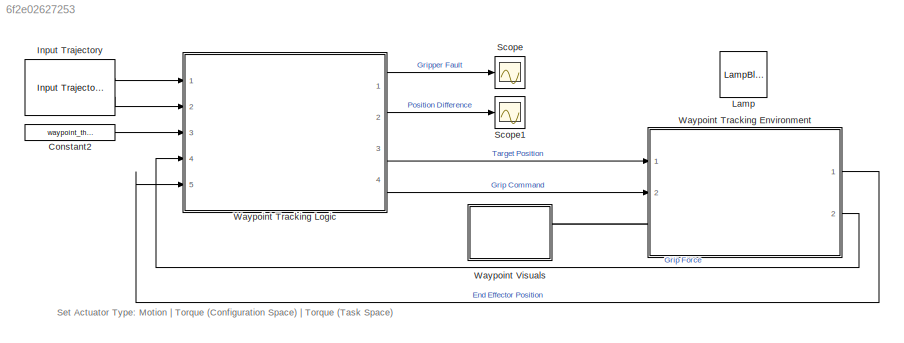
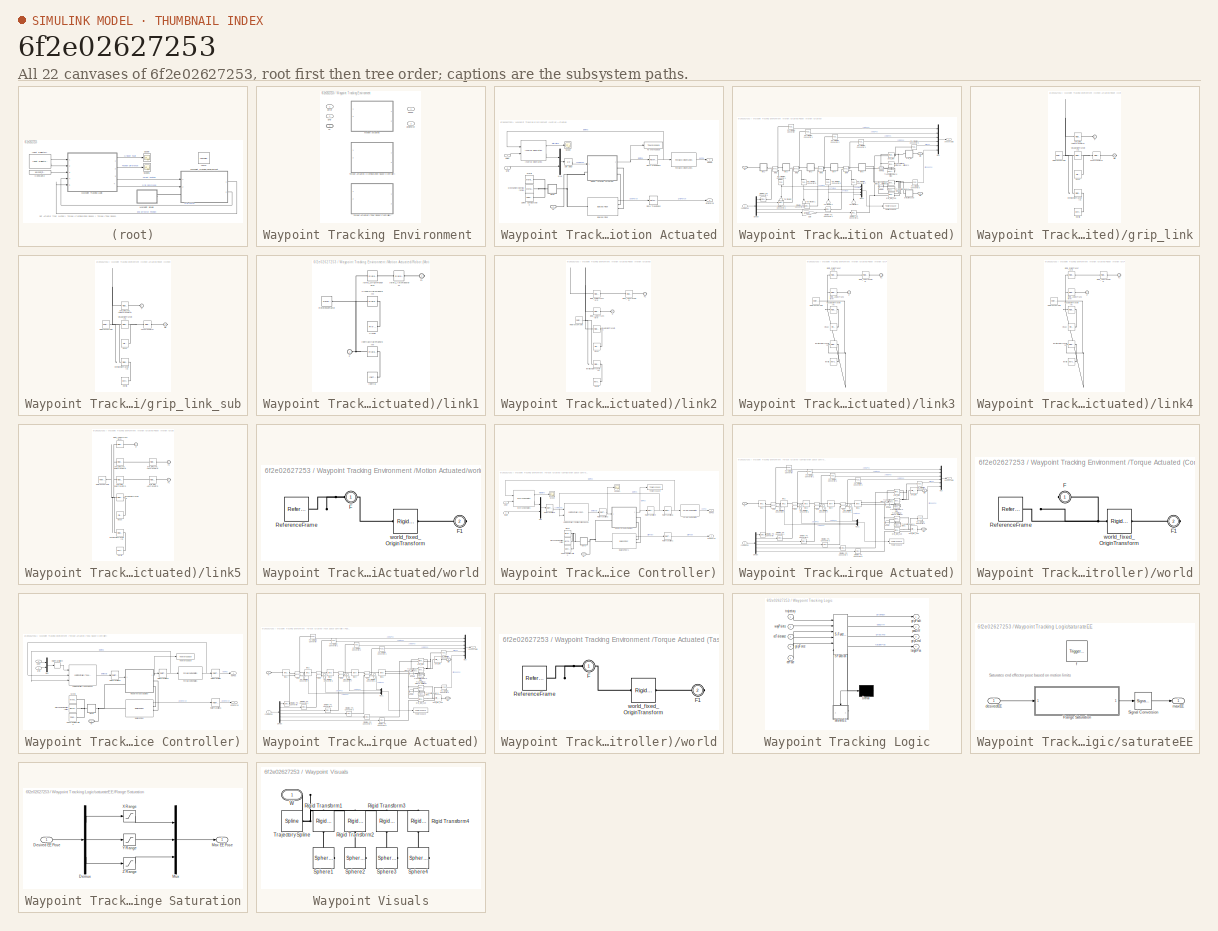
[diagram: thumbnail index - all 22 canvases of the model, root first then tree order]
MODEL slx_6f2e02627253
KIND model
CONFIG AbsTol = auto
CONFIG EnableMultiTasking = off
CONFIG FixedStep = 0.01
CONFIG MaxStep = auto
CONFIG MinStep = auto
CONFIG PreLoadFcn = openManipulatorParameters;
CONFIG RelTol = 1e-3
CONFIG SampleTimeConstraint = Unconstrained
CONFIG Solver = VariableStepAuto
CONFIG SolverName = VariableStepAuto
CONFIG StartTime = 0.0
CONFIG StopTime = 12
BLOCK [Constant] Constant2
  Value = waypoint_threshold
BLOCK [Reference] Input Trajectory  REF=OpenManipulatorLib/Input Trajectory
  NameLocation = top
  Ports = [0, 2]
  SourceBlock = OpenManipulatorLib/Input Trajectory
  SourceType = Input Trajectory
BLOCK [LampBlock] Lamp
BLOCK [Scope] Scope
  Floating = off
  NumInputPorts = 1
  Ports = [1]
  ScopeSpecificationString = Simulink.scopes.TimeScopeBlockCfg('CurrentConfiguration', extmgr.ConfigurationSet(extmgr.Configuration('Core','General UI',true),extmgr.Configuration('Core','Source UI',true),extmgr.Configuration('Sources','WiredSimulink',true,'DataLoggingVariableName','ScopeData1'),extmgr.Configuration('Visuals','Time Domain',true,'SerializedDisplays',{struct('MinYLimReal','-1.00000','MaxYLimReal','1.00000','YLab...<+1445ch>
BLOCK [Scope] Scope1
  Floating = off
  NumInputPorts = 1
  Ports = [1]
  ScopeSpecificationString = Simulink.scopes.TimeScopeBlockCfg('CurrentConfiguration', extmgr.ConfigurationSet(extmgr.Configuration('Core','General UI',true),extmgr.Configuration('Core','Source UI',true),extmgr.Configuration('Sources','WiredSimulink',true,'DataLoggingVariableName','ScopeData2'),extmgr.Configuration('Visuals','Time Domain',true,'SerializedDisplays',{struct('MinYLimReal','-0.04606','MaxYLimReal','0.41532','YLab...<+1501ch>
BLOCK [SubSystem] Waypoint Tracking Environment 
  AncestorBlock = OpenManipulatorLib/Waypoint Tracking Environment
  NameLocation = top
  Ports = [2, 2, 0, 0, 0, 1]
  RequestExecContextInheritance = off
  Variant = on
  VariantControl = Variant1
BLOCK [Outport] Waypoint Tracking Environment / gripForce
  Port = 2
  VectorParamsAs1DForOutWhenUnconnected = off
BLOCK [SubSystem] Waypoint Tracking Environment /Motion Actuated
  Ports = [2, 2, 0, 0, 0, 1]
  RequestExecContextInheritance = off
  VariantControl = actuatorType==1
BLOCK [Reference] Waypoint Tracking Environment /Motion Actuated/Ball and Floor  REF=OpenManipulatorLib/Ball and Floor
  Ports = [0, 1, 0, 0, 0, 1, 3]
  SourceBlock = OpenManipulatorLib/Ball and Floor
  SourceType = Ball and Floor
BLOCK [Reference] Waypoint Tracking Environment /Motion Actuated/Forward Kinematics  REF=OpenManipulatorLib/Forward Kinematics
  Ports = [1, 1]
  SourceBlock = OpenManipulatorLib/Forward Kinematics
  SourceType = SubSystem
BLOCK [Reference] Waypoint Tracking Environment /Motion Actuated/Inverse Kinematics  REF=OpenManipulatorLib/Inverse Kinematics
  Ports = [2, 2]
  SourceBlock = OpenManipulatorLib/Inverse Kinematics
  SourceType = SubSystem
BLOCK [Reference] Waypoint Tracking Environment /Motion Actuated/MechanismConfiguration  REF=sm_lib/Utilities/Mechanism
Configuration
  Ports = [0, 0, 0, 0, 0, 0, 1]
  SourceBlock = sm_lib/Utilities/Mechanism\nConfiguration
  SourceProductBaseCode = MS
  SourceType = Mechanism\nConfiguration
BLOCK [Mux] Waypoint Tracking Environment /Motion Actuated/Mux
  DisplayOption = bar
  Inputs = 2
  Ports = [2, 1]
BLOCK [RateTransition] Waypoint Tracking Environment /Motion Actuated/Rate Transition1
BLOCK [RateTransition] Waypoint Tracking Environment /Motion Actuated/Rate Transition2
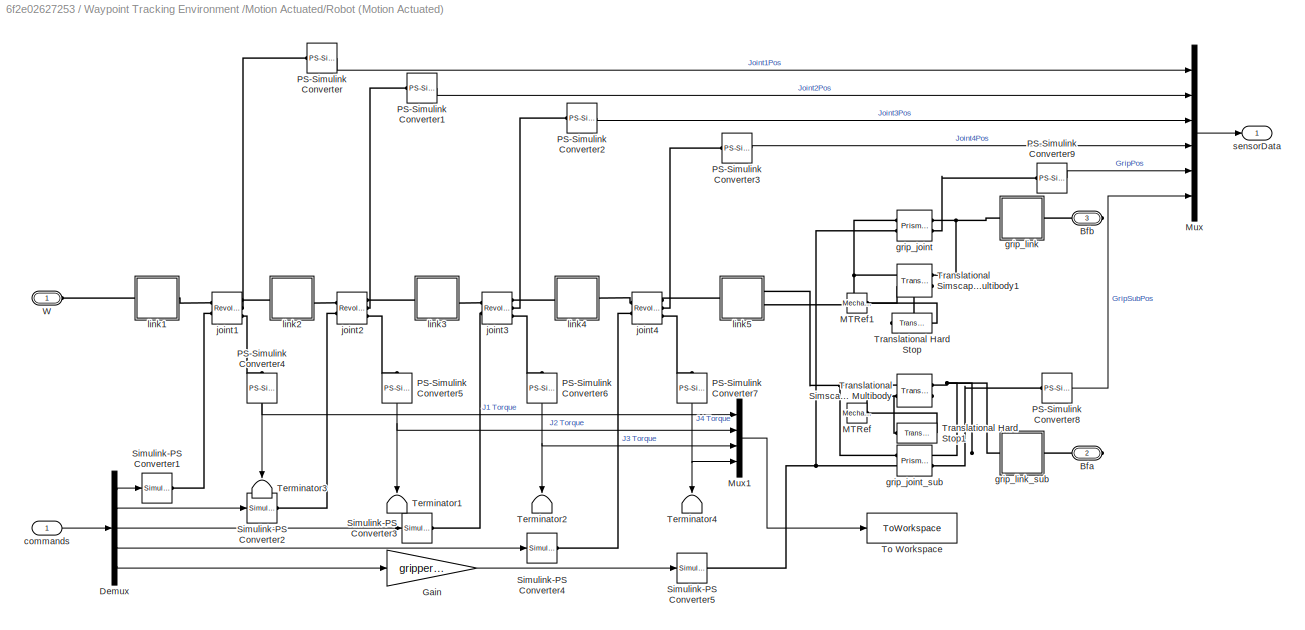
BLOCK [SubSystem] Waypoint Tracking Environment /Motion Actuated/Robot (Motion Actuated)
  AncestorBlock = OpenManipulatorLib/Robot \n(Motion Actuated)
  Ports = [1, 1, 0, 0, 0, 1, 2]
  RequestExecContextInheritance = off
BLOCK [PMIOPort] Waypoint Tracking Environment /Motion Actuated/Robot (Motion Actuated)/Bfa
  Port = 2
  Side = Right
BLOCK [PMIOPort] Waypoint Tracking Environment /Motion Actuated/Robot (Motion Actuated)/Bfb
  Port = 3
  Side = Right
BLOCK [Demux] Waypoint Tracking Environment /Motion Actuated/Robot (Motion Actuated)/Demux
  Outputs = 5
  Ports = [1, 5]
BLOCK [Gain] Waypoint Tracking Environment /Motion Actuated/Robot (Motion Actuated)/Gain
  Gain = gripper_force
BLOCK [Reference] Waypoint Tracking Environment /Motion Actuated/Robot (Motion Actuated)/MTRef  REF=fl_lib/Mechanical/Translational
Elements/Mechanical
Translational
Reference
  Ports = [0, 0, 0, 0, 0, 1]
  SourceBlock = fl_lib/Mechanical/Translational\nElements/Mechanical\nTranslational\nReference
  SourceProductBaseCode = SS
  SourceType = Mechanical\nTranslational\nReference
BLOCK [Reference] Waypoint Tracking Environment /Motion Actuated/Robot (Motion Actuated)/MTRef1  REF=fl_lib/Mechanical/Translational
Elements/Mechanical
Translational
Reference
  Ports = [0, 0, 0, 0, 0, 1]
  SourceBlock = fl_lib/Mechanical/Translational\nElements/Mechanical\nTranslational\nReference
  SourceProductBaseCode = SS
  SourceType = Mechanical\nTranslational\nReference
BLOCK [Mux] Waypoint Tracking Environment /Motion Actuated/Robot (Motion Actuated)/Mux
  DisplayOption = bar
  Inputs = 6
  Ports = [6, 1]
BLOCK [Mux] Waypoint Tracking Environment /Motion Actuated/Robot (Motion Actuated)/Mux1
  DisplayOption = bar
  Ports = [4, 1]
BLOCK [Reference] Waypoint Tracking Environment /Motion Actuated/Robot (Motion Actuated)/PS-Simulink Converter  REF=nesl_utility/PS-Simulink
Converter
  Ports = [0, 1, 0, 0, 0, 1]
  SourceBlock = nesl_utility/PS-Simulink\nConverter
  SourceProductBaseCode = SS
  SourceType = PS-Simulink\nConverter
BLOCK [Reference] Waypoint Tracking Environment /Motion Actuated/Robot (Motion Actuated)/PS-Simulink Converter1  REF=nesl_utility/PS-Simulink
Converter
  Ports = [0, 1, 0, 0, 0, 1]
  SourceBlock = nesl_utility/PS-Simulink\nConverter
  SourceProductBaseCode = SS
  SourceType = PS-Simulink\nConverter
BLOCK [Reference] Waypoint Tracking Environment /Motion Actuated/Robot (Motion Actuated)/PS-Simulink Converter2  REF=nesl_utility/PS-Simulink
Converter
  Ports = [0, 1, 0, 0, 0, 1]
  SourceBlock = nesl_utility/PS-Simulink\nConverter
  SourceProductBaseCode = SS
  SourceType = PS-Simulink\nConverter
BLOCK [Reference] Waypoint Tracking Environment /Motion Actuated/Robot (Motion Actuated)/PS-Simulink Converter3  REF=nesl_utility/PS-Simulink
Converter
  Ports = [0, 1, 0, 0, 0, 1]
  SourceBlock = nesl_utility/PS-Simulink\nConverter
  SourceProductBaseCode = SS
  SourceType = PS-Simulink\nConverter
BLOCK [Reference] Waypoint Tracking Environment /Motion Actuated/Robot (Motion Actuated)/PS-Simulink Converter4  REF=nesl_utility/PS-Simulink
Converter
  NameLocation = left
  Ports = [0, 1, 0, 0, 0, 1]
  SourceBlock = nesl_utility/PS-Simulink\nConverter
  SourceProductBaseCode = SS
  SourceType = PS-Simulink\nConverter
BLOCK [Reference] Waypoint Tracking Environment /Motion Actuated/Robot (Motion Actuated)/PS-Simulink Converter5  REF=nesl_utility/PS-Simulink
Converter
  NameLocation = left
  Ports = [0, 1, 0, 0, 0, 1]
  SourceBlock = nesl_utility/PS-Simulink\nConverter
  SourceProductBaseCode = SS
  SourceType = PS-Simulink\nConverter
BLOCK [Reference] Waypoint Tracking Environment /Motion Actuated/Robot (Motion Actuated)/PS-Simulink Converter6  REF=nesl_utility/PS-Simulink
Converter
  NameLocation = left
  Ports = [0, 1, 0, 0, 0, 1]
  SourceBlock = nesl_utility/PS-Simulink\nConverter
  SourceProductBaseCode = SS
  SourceType = PS-Simulink\nConverter
BLOCK [Reference] Waypoint Tracking Environment /Motion Actuated/Robot (Motion Actuated)/PS-Simulink Converter7  REF=nesl_utility/PS-Simulink
Converter
  NameLocation = left
  Ports = [0, 1, 0, 0, 0, 1]
  SourceBlock = nesl_utility/PS-Simulink\nConverter
  SourceProductBaseCode = SS
  SourceType = PS-Simulink\nConverter
BLOCK [Reference] Waypoint Tracking Environment /Motion Actuated/Robot (Motion Actuated)/PS-Simulink Converter8  REF=nesl_utility/PS-Simulink
Converter
  Ports = [0, 1, 0, 0, 0, 1]
  SourceBlock = nesl_utility/PS-Simulink\nConverter
  SourceProductBaseCode = SS
  SourceType = PS-Simulink\nConverter
BLOCK [Reference] Waypoint Tracking Environment /Motion Actuated/Robot (Motion Actuated)/PS-Simulink Converter9  REF=nesl_utility/PS-Simulink
Converter
  Ports = [0, 1, 0, 0, 0, 1]
  SourceBlock = nesl_utility/PS-Simulink\nConverter
  SourceProductBaseCode = SS
  SourceType = PS-Simulink\nConverter
BLOCK [Reference] Waypoint Tracking Environment /Motion Actuated/Robot (Motion Actuated)/Simulink-PS Converter1  REF=nesl_utility/Simulink-PS
Converter
  Ports = [1, 0, 0, 0, 0, 0, 1]
  SourceBlock = nesl_utility/Simulink-PS\nConverter
  SourceProductBaseCode = SS
  SourceType = Simulink-PS\nConverter
BLOCK [Reference] Waypoint Tracking Environment /Motion Actuated/Robot (Motion Actuated)/Simulink-PS Converter2  REF=nesl_utility/Simulink-PS
Converter
  Ports = [1, 0, 0, 0, 0, 0, 1]
  SourceBlock = nesl_utility/Simulink-PS\nConverter
  SourceProductBaseCode = SS
  SourceType = Simulink-PS\nConverter
BLOCK [Reference] Waypoint Tracking Environment /Motion Actuated/Robot (Motion Actuated)/Simulink-PS Converter3  REF=nesl_utility/Simulink-PS
Converter
  Ports = [1, 0, 0, 0, 0, 0, 1]
  SourceBlock = nesl_utility/Simulink-PS\nConverter
  SourceProductBaseCode = SS
  SourceType = Simulink-PS\nConverter
BLOCK [Reference] Waypoint Tracking Environment /Motion Actuated/Robot (Motion Actuated)/Simulink-PS Converter4  REF=nesl_utility/Simulink-PS
Converter
  Ports = [1, 0, 0, 0, 0, 0, 1]
  SourceBlock = nesl_utility/Simulink-PS\nConverter
  SourceProductBaseCode = SS
  SourceType = Simulink-PS\nConverter
BLOCK [Reference] Waypoint Tracking Environment /Motion Actuated/Robot (Motion Actuated)/Simulink-PS Converter5  REF=nesl_utility/Simulink-PS
Converter
  Ports = [1, 0, 0, 0, 0, 0, 1]
  SourceBlock = nesl_utility/Simulink-PS\nConverter
  SourceProductBaseCode = SS
  SourceType = Simulink-PS\nConverter
BLOCK [Terminator] Waypoint Tracking Environment /Motion Actuated/Robot (Motion Actuated)/Terminator1
  NameLocation = left
BLOCK [Terminator] Waypoint Tracking Environment /Motion Actuated/Robot (Motion Actuated)/Terminator2
  NameLocation = left
BLOCK [Terminator] Waypoint Tracking Environment /Motion Actuated/Robot (Motion Actuated)/Terminator3
  NameLocation = left
BLOCK [Terminator] Waypoint Tracking Environment /Motion Actuated/Robot (Motion Actuated)/Terminator4
  NameLocation = left
BLOCK [ToWorkspace] Waypoint Tracking Environment /Motion Actuated/Robot (Motion Actuated)/To Workspace
  FixptAsFi = on
  MaxDataPoints = inf
  Ports = [1]
  SampleTime = -1
  SaveFormat = Structure With Time
  VariableName = outTor
BLOCK [Reference] Waypoint Tracking Environment /Motion Actuated/Robot (Motion Actuated)/Translational Hard Stop  REF=fl_lib/Mechanical/Translational
Elements/Translational Hard
Stop
  NameLocation = top
  Ports = [0, 0, 0, 0, 0, 1, 1]
  SourceBlock = fl_lib/Mechanical/Translational\nElements/Translational Hard\nStop
  SourceProductBaseCode = SS
  SourceType = Translational Hard\nStop
BLOCK [Reference] Waypoint Tracking Environment /Motion Actuated/Robot (Motion Actuated)/Translational Hard Stop1  REF=fl_lib/Mechanical/Translational
Elements/Translational Hard
Stop
  NameLocation = top
  Ports = [0, 0, 0, 0, 0, 1, 1]
  SourceBlock = fl_lib/Mechanical/Translational\nElements/Translational Hard\nStop
  SourceProductBaseCode = SS
  SourceType = Translational Hard\nStop
BLOCK [Reference] Waypoint Tracking Environment /Motion Actuated/Robot (Motion Actuated)/Translational Simscape Multibody  REF=Multibody_Multiphysics_Lib/Interfaces/Translational
Simscape Multibody
  Ports = [0, 0, 0, 0, 0, 2, 2]
  SourceBlock = Multibody_Multiphysics_Lib/Interfaces/Translational\nSimscape Multibody
  SourceProductName = Simscape Multibody Multiphysics Library
  SourceType = SubSystem
BLOCK [Reference] Waypoint Tracking Environment /Motion Actuated/Robot (Motion Actuated)/Translational Simscape Multibody1  REF=Multibody_Multiphysics_Lib/Interfaces/Translational
Simscape Multibody
  Ports = [0, 0, 0, 0, 0, 2, 2]
  SourceBlock = Multibody_Multiphysics_Lib/Interfaces/Translational\nSimscape Multibody
  SourceProductName = Simscape Multibody Multiphysics Library
  SourceType = SubSystem
BLOCK [PMIOPort] Waypoint Tracking Environment /Motion Actuated/Robot (Motion Actuated)/W
  Side = Left
BLOCK [Inport] Waypoint Tracking Environment /Motion Actuated/Robot (Motion Actuated)/commands
BLOCK [Reference] Waypoint Tracking Environment /Motion Actuated/Robot (Motion Actuated)/grip_joint  REF=sm_lib/Joints/Prismatic
Joint
  Ports = [0, 0, 0, 0, 0, 2, 2]
  SourceBlock = sm_lib/Joints/Prismatic\nJoint
  SourceProductBaseCode = MS
  SourceType = Prismatic\nJoint
BLOCK [Reference] Waypoint Tracking Environment /Motion Actuated/Robot (Motion Actuated)/grip_joint_sub  REF=sm_lib/Joints/Prismatic
Joint
  Ports = [0, 0, 0, 0, 0, 2, 2]
  SourceBlock = sm_lib/Joints/Prismatic\nJoint
  SourceProductBaseCode = MS
  SourceType = Prismatic\nJoint
BLOCK [SubSystem] Waypoint Tracking Environment /Motion Actuated/Robot (Motion Actuated)/grip_link
  Ports = [0, 0, 0, 0, 0, 1, 1]
  RequestExecContextInheritance = off
BLOCK [PMIOPort] Waypoint Tracking Environment /Motion Actuated/Robot (Motion Actuated)/grip_link/Bfb
  Port = 2
  Side = Right
BLOCK [PMIOPort] Waypoint Tracking Environment /Motion Actuated/Robot (Motion Actuated)/grip_link/F
  Side = Left
BLOCK [Reference] Waypoint Tracking Environment /Motion Actuated/Robot (Motion Actuated)/grip_link/FaceTransform  REF=sm_lib/Frames and
Transforms/Rigid
Transform
  Ports = [0, 0, 0, 0, 0, 1, 1]
  SourceBlock = sm_lib/Frames and\nTransforms/Rigid\nTransform
  SourceProductBaseCode = MS
  SourceType = Rigid\nTransform
BLOCK [Reference] Waypoint Tracking Environment /Motion Actuated/Robot (Motion Actuated)/grip_link/Inertia  REF=sm_lib/Body Elements/Inertia
  Ports = [0, 0, 0, 0, 0, 0, 1]
  SourceBlock = sm_lib/Body Elements/Inertia
  SourceProductBaseCode = MS
  SourceType = Inertia
BLOCK [Reference] Waypoint Tracking Environment /Motion Actuated/Robot (Motion Actuated)/grip_link/InertiaOriginTransform  REF=sm_lib/Frames and
Transforms/Rigid
Transform
  Ports = [0, 0, 0, 0, 0, 1, 1]
  SourceBlock = sm_lib/Frames and\nTransforms/Rigid\nTransform
  SourceProductBaseCode = MS
  SourceType = Rigid\nTransform
BLOCK [Reference] Waypoint Tracking Environment /Motion Actuated/Robot (Motion Actuated)/grip_link/ReferenceFrame  REF=sm_lib/Frames and
Transforms/Reference
Frame
  Ports = [0, 0, 0, 0, 0, 0, 1]
  SourceBlock = sm_lib/Frames and\nTransforms/Reference\nFrame
  SourceProductBaseCode = MS
  SourceType = Reference\nFrame
BLOCK [Reference] Waypoint Tracking Environment /Motion Actuated/Robot (Motion Actuated)/grip_link/Visual  REF=sm_lib/Body Elements/File Solid
  Ports = [0, 0, 0, 0, 0, 0, 1]
  SourceBlock = sm_lib/Body Elements/File Solid
  SourceProductBaseCode = MS
  SourceType = File Solid
BLOCK [Reference] Waypoint Tracking Environment /Motion Actuated/Robot (Motion Actuated)/grip_link/VisualOriginTransform  REF=sm_lib/Frames and
Transforms/Rigid
Transform
  Ports = [0, 0, 0, 0, 0, 1, 1]
  SourceBlock = sm_lib/Frames and\nTransforms/Rigid\nTransform
  SourceProductBaseCode = MS
  SourceType = Rigid\nTransform
BLOCK [Reference] Waypoint Tracking Environment /Motion Actuated/Robot (Motion Actuated)/grip_link/grip_joint_AxisInvTransform  REF=sm_lib/Frames and
Transforms/Rigid
Transform
  Ports = [0, 0, 0, 0, 0, 1, 1]
  SourceBlock = sm_lib/Frames and\nTransforms/Rigid\nTransform
  SourceProductBaseCode = MS
  SourceType = Rigid\nTransform
BLOCK [SubSystem] Waypoint Tracking Environment /Motion Actuated/Robot (Motion Actuated)/grip_link_sub
  Ports = [0, 0, 0, 0, 0, 1, 1]
  RequestExecContextInheritance = off
BLOCK [PMIOPort] Waypoint Tracking Environment /Motion Actuated/Robot (Motion Actuated)/grip_link_sub/Bfa
  Port = 2
  Side = Right
BLOCK [PMIOPort] Waypoint Tracking Environment /Motion Actuated/Robot (Motion Actuated)/grip_link_sub/F
  Side = Left
BLOCK [Reference] Waypoint Tracking Environment /Motion Actuated/Robot (Motion Actuated)/grip_link_sub/FaceTransform  REF=sm_lib/Frames and
Transforms/Rigid
Transform
  Ports = [0, 0, 0, 0, 0, 1, 1]
  SourceBlock = sm_lib/Frames and\nTransforms/Rigid\nTransform
  SourceProductBaseCode = MS
  SourceType = Rigid\nTransform
BLOCK [Reference] Waypoint Tracking Environment /Motion Actuated/Robot (Motion Actuated)/grip_link_sub/Inertia  REF=sm_lib/Body Elements/Inertia
  Ports = [0, 0, 0, 0, 0, 0, 1]
  SourceBlock = sm_lib/Body Elements/Inertia
  SourceProductBaseCode = MS
  SourceType = Inertia
BLOCK [Reference] Waypoint Tracking Environment /Motion Actuated/Robot (Motion Actuated)/grip_link_sub/InertiaOriginTransform  REF=sm_lib/Frames and
Transforms/Rigid
Transform
  Ports = [0, 0, 0, 0, 0, 1, 1]
  SourceBlock = sm_lib/Frames and\nTransforms/Rigid\nTransform
  SourceProductBaseCode = MS
  SourceType = Rigid\nTransform
BLOCK [Reference] Waypoint Tracking Environment /Motion Actuated/Robot (Motion Actuated)/grip_link_sub/ReferenceFrame  REF=sm_lib/Frames and
Transforms/Reference
Frame
  Ports = [0, 0, 0, 0, 0, 0, 1]
  SourceBlock = sm_lib/Frames and\nTransforms/Reference\nFrame
  SourceProductBaseCode = MS
  SourceType = Reference\nFrame
BLOCK [Reference] Waypoint Tracking Environment /Motion Actuated/Robot (Motion Actuated)/grip_link_sub/Visual  REF=sm_lib/Body Elements/File Solid
  Ports = [0, 0, 0, 0, 0, 0, 1]
  SourceBlock = sm_lib/Body Elements/File Solid
  SourceProductBaseCode = MS
  SourceType = File Solid
BLOCK [Reference] Waypoint Tracking Environment /Motion Actuated/Robot (Motion Actuated)/grip_link_sub/VisualOriginTransform  REF=sm_lib/Frames and
Transforms/Rigid
Transform
  Ports = [0, 0, 0, 0, 0, 1, 1]
  SourceBlock = sm_lib/Frames and\nTransforms/Rigid\nTransform
  SourceProductBaseCode = MS
  SourceType = Rigid\nTransform
BLOCK [Reference] Waypoint Tracking Environment /Motion Actuated/Robot (Motion Actuated)/grip_link_sub/grip_joint_sub_AxisInvTransform  REF=sm_lib/Frames and
Transforms/Rigid
Transform
  Ports = [0, 0, 0, 0, 0, 1, 1]
  SourceBlock = sm_lib/Frames and\nTransforms/Rigid\nTransform
  SourceProductBaseCode = MS
  SourceType = Rigid\nTransform
BLOCK [Reference] Waypoint Tracking Environment /Motion Actuated/Robot (Motion Actuated)/joint1  REF=sm_lib/Joints/Revolute Joint
  Ports = [0, 0, 0, 0, 0, 2, 3]
  SourceBlock = sm_lib/Joints/Revolute Joint
  SourceProductBaseCode = MS
  SourceType = Revolute Joint
BLOCK [Reference] Waypoint Tracking Environment /Motion Actuated/Robot (Motion Actuated)/joint2  REF=sm_lib/Joints/Revolute Joint
  Ports = [0, 0, 0, 0, 0, 2, 3]
  SourceBlock = sm_lib/Joints/Revolute Joint
  SourceProductBaseCode = MS
  SourceType = Revolute Joint
BLOCK [Reference] Waypoint Tracking Environment /Motion Actuated/Robot (Motion Actuated)/joint3  REF=sm_lib/Joints/Revolute Joint
  Ports = [0, 0, 0, 0, 0, 2, 3]
  SourceBlock = sm_lib/Joints/Revolute Joint
  SourceProductBaseCode = MS
  SourceType = Revolute Joint
BLOCK [Reference] Waypoint Tracking Environment /Motion Actuated/Robot (Motion Actuated)/joint4  REF=sm_lib/Joints/Revolute Joint
  Ports = [0, 0, 0, 0, 0, 2, 3]
  SourceBlock = sm_lib/Joints/Revolute Joint
  SourceProductBaseCode = MS
  SourceType = Revolute Joint
BLOCK [SubSystem] Waypoint Tracking Environment /Motion Actuated/Robot (Motion Actuated)/link1
  Ports = [0, 0, 0, 0, 0, 1, 1]
  RequestExecContextInheritance = off
BLOCK [PMIOPort] Waypoint Tracking Environment /Motion Actuated/Robot (Motion Actuated)/link1/F
  Side = Left
BLOCK [PMIOPort] Waypoint Tracking Environment /Motion Actuated/Robot (Motion Actuated)/link1/F1
  Port = 2
  Side = Right
BLOCK [Reference] Waypoint Tracking Environment /Motion Actuated/Robot (Motion Actuated)/link1/Inertia  REF=sm_lib/Body Elements/Inertia
  Ports = [0, 0, 0, 0, 0, 0, 1]
  SourceBlock = sm_lib/Body Elements/Inertia
  SourceProductBaseCode = MS
  SourceType = Inertia
BLOCK [Reference] Waypoint Tracking Environment /Motion Actuated/Robot (Motion Actuated)/link1/InertiaOriginTransform  REF=sm_lib/Frames and
Transforms/Rigid
Transform
  Ports = [0, 0, 0, 0, 0, 1, 1]
  SourceBlock = sm_lib/Frames and\nTransforms/Rigid\nTransform
  SourceProductBaseCode = MS
  SourceType = Rigid\nTransform
BLOCK [Reference] Waypoint Tracking Environment /Motion Actuated/Robot (Motion Actuated)/link1/ReferenceFrame  REF=sm_lib/Frames and
Transforms/Reference
Frame
  Ports = [0, 0, 0, 0, 0, 0, 1]
  SourceBlock = sm_lib/Frames and\nTransforms/Reference\nFrame
  SourceProductBaseCode = MS
  SourceType = Reference\nFrame
BLOCK [Reference] Waypoint Tracking Environment /Motion Actuated/Robot (Motion Actuated)/link1/Visual  REF=sm_lib/Body Elements/File Solid
  Ports = [0, 0, 0, 0, 0, 0, 1]
  SourceBlock = sm_lib/Body Elements/File Solid
  SourceProductBaseCode = MS
  SourceType = File Solid
BLOCK [Reference] Waypoint Tracking Environment /Motion Actuated/Robot (Motion Actuated)/link1/VisualOriginTransform  REF=sm_lib/Frames and
Transforms/Rigid
Transform
  Ports = [0, 0, 0, 0, 0, 1, 1]
  SourceBlock = sm_lib/Frames and\nTransforms/Rigid\nTransform
  SourceProductBaseCode = MS
  SourceType = Rigid\nTransform
BLOCK [Reference] Waypoint Tracking Environment /Motion Actuated/Robot (Motion Actuated)/link1/joint1_AxisTransform  REF=sm_lib/Frames and
Transforms/Rigid
Transform
  Ports = [0, 0, 0, 0, 0, 1, 1]
  SourceBlock = sm_lib/Frames and\nTransforms/Rigid\nTransform
  SourceProductBaseCode = MS
  SourceType = Rigid\nTransform
BLOCK [Reference] Waypoint Tracking Environment /Motion Actuated/Robot (Motion Actuated)/link1/joint1_OriginTransform  REF=sm_lib/Frames and
Transforms/Rigid
Transform
  Ports = [0, 0, 0, 0, 0, 1, 1]
  SourceBlock = sm_lib/Frames and\nTransforms/Rigid\nTransform
  SourceProductBaseCode = MS
  SourceType = Rigid\nTransform
BLOCK [SubSystem] Waypoint Tracking Environment /Motion Actuated/Robot (Motion Actuated)/link2
  Ports = [0, 0, 0, 0, 0, 1, 1]
  RequestExecContextInheritance = off
BLOCK [PMIOPort] Waypoint Tracking Environment /Motion Actuated/Robot (Motion Actuated)/link2/F
  Side = Left
BLOCK [PMIOPort] Waypoint Tracking Environment /Motion Actuated/Robot (Motion Actuated)/link2/F1
  Port = 2
  Side = Right
BLOCK [Reference] Waypoint Tracking Environment /Motion Actuated/Robot (Motion Actuated)/link2/Inertia  REF=sm_lib/Body Elements/Inertia
  Ports = [0, 0, 0, 0, 0, 0, 1]
  SourceBlock = sm_lib/Body Elements/Inertia
  SourceProductBaseCode = MS
  SourceType = Inertia
BLOCK [Reference] Waypoint Tracking Environment /Motion Actuated/Robot (Motion Actuated)/link2/InertiaOriginTransform  REF=sm_lib/Frames and
Transforms/Rigid
Transform
  Ports = [0, 0, 0, 0, 0, 1, 1]
  SourceBlock = sm_lib/Frames and\nTransforms/Rigid\nTransform
  SourceProductBaseCode = MS
  SourceType = Rigid\nTransform
BLOCK [Reference] Waypoint Tracking Environment /Motion Actuated/Robot (Motion Actuated)/link2/ReferenceFrame  REF=sm_lib/Frames and
Transforms/Reference
Frame
  Ports = [0, 0, 0, 0, 0, 0, 1]
  SourceBlock = sm_lib/Frames and\nTransforms/Reference\nFrame
  SourceProductBaseCode = MS
  SourceType = Reference\nFrame
BLOCK [Reference] Waypoint Tracking Environment /Motion Actuated/Robot (Motion Actuated)/link2/Visual  REF=sm_lib/Body Elements/File Solid
  Ports = [0, 0, 0, 0, 0, 0, 1]
  SourceBlock = sm_lib/Body Elements/File Solid
  SourceProductBaseCode = MS
  SourceType = File Solid
BLOCK [Reference] Waypoint Tracking Environment /Motion Actuated/Robot (Motion Actuated)/link2/VisualOriginTransform  REF=sm_lib/Frames and
Transforms/Rigid
Transform
  Ports = [0, 0, 0, 0, 0, 1, 1]
  SourceBlock = sm_lib/Frames and\nTransforms/Rigid\nTransform
  SourceProductBaseCode = MS
  SourceType = Rigid\nTransform
BLOCK [Reference] Waypoint Tracking Environment /Motion Actuated/Robot (Motion Actuated)/link2/joint1_AxisInvTransform  REF=sm_lib/Frames and
Transforms/Rigid
Transform
  Ports = [0, 0, 0, 0, 0, 1, 1]
  SourceBlock = sm_lib/Frames and\nTransforms/Rigid\nTransform
  SourceProductBaseCode = MS
  SourceType = Rigid\nTransform
BLOCK [Reference] Waypoint Tracking Environment /Motion Actuated/Robot (Motion Actuated)/link2/joint2_AxisTransform  REF=sm_lib/Frames and
Transforms/Rigid
Transform
  Ports = [0, 0, 0, 0, 0, 1, 1]
  SourceBlock = sm_lib/Frames and\nTransforms/Rigid\nTransform
  SourceProductBaseCode = MS
  SourceType = Rigid\nTransform
BLOCK [Reference] Waypoint Tracking Environment /Motion Actuated/Robot (Motion Actuated)/link2/joint2_OriginTransform  REF=sm_lib/Frames and
Transforms/Rigid
Transform
  Ports = [0, 0, 0, 0, 0, 1, 1]
  SourceBlock = sm_lib/Frames and\nTransforms/Rigid\nTransform
  SourceProductBaseCode = MS
  SourceType = Rigid\nTransform
BLOCK [SubSystem] Waypoint Tracking Environment /Motion Actuated/Robot (Motion Actuated)/link3
  Ports = [0, 0, 0, 0, 0, 1, 1]
  RequestExecContextInheritance = off
BLOCK [PMIOPort] Waypoint Tracking Environment /Motion Actuated/Robot (Motion Actuated)/link3/F
  Side = Left
BLOCK [PMIOPort] Waypoint Tracking Environment /Motion Actuated/Robot (Motion Actuated)/link3/F1
  Port = 2
  Side = Right
BLOCK [Reference] Waypoint Tracking Environment /Motion Actuated/Robot (Motion Actuated)/link3/Inertia  REF=sm_lib/Body Elements/Inertia
  Ports = [0, 0, 0, 0, 0, 0, 1]
  SourceBlock = sm_lib/Body Elements/Inertia
  SourceProductBaseCode = MS
  SourceType = Inertia
BLOCK [Reference] Waypoint Tracking Environment /Motion Actuated/Robot (Motion Actuated)/link3/InertiaOriginTransform  REF=sm_lib/Frames and
Transforms/Rigid
Transform
  Ports = [0, 0, 0, 0, 0, 1, 1]
  SourceBlock = sm_lib/Frames and\nTransforms/Rigid\nTransform
  SourceProductBaseCode = MS
  SourceType = Rigid\nTransform
BLOCK [Reference] Waypoint Tracking Environment /Motion Actuated/Robot (Motion Actuated)/link3/ReferenceFrame  REF=sm_lib/Frames and
Transforms/Reference
Frame
  Ports = [0, 0, 0, 0, 0, 0, 1]
  SourceBlock = sm_lib/Frames and\nTransforms/Reference\nFrame
  SourceProductBaseCode = MS
  SourceType = Reference\nFrame
BLOCK [Reference] Waypoint Tracking Environment /Motion Actuated/Robot (Motion Actuated)/link3/Visual  REF=sm_lib/Body Elements/File Solid
  Ports = [0, 0, 0, 0, 0, 0, 1]
  SourceBlock = sm_lib/Body Elements/File Solid
  SourceProductBaseCode = MS
  SourceType = File Solid
BLOCK [Reference] Waypoint Tracking Environment /Motion Actuated/Robot (Motion Actuated)/link3/VisualOriginTransform  REF=sm_lib/Frames and
Transforms/Rigid
Transform
  Ports = [0, 0, 0, 0, 0, 1, 1]
  SourceBlock = sm_lib/Frames and\nTransforms/Rigid\nTransform
  SourceProductBaseCode = MS
  SourceType = Rigid\nTransform
BLOCK [Reference] Waypoint Tracking Environment /Motion Actuated/Robot (Motion Actuated)/link3/joint2_AxisInvTransform  REF=sm_lib/Frames and
Transforms/Rigid
Transform
  Ports = [0, 0, 0, 0, 0, 1, 1]
  SourceBlock = sm_lib/Frames and\nTransforms/Rigid\nTransform
  SourceProductBaseCode = MS
  SourceType = Rigid\nTransform
BLOCK [Reference] Waypoint Tracking Environment /Motion Actuated/Robot (Motion Actuated)/link3/joint3_AxisTransform  REF=sm_lib/Frames and
Transforms/Rigid
Transform
  Ports = [0, 0, 0, 0, 0, 1, 1]
  SourceBlock = sm_lib/Frames and\nTransforms/Rigid\nTransform
  SourceProductBaseCode = MS
  SourceType = Rigid\nTransform
BLOCK [Reference] Waypoint Tracking Environment /Motion Actuated/Robot (Motion Actuated)/link3/joint3_OriginTransform  REF=sm_lib/Frames and
Transforms/Rigid
Transform
  Ports = [0, 0, 0, 0, 0, 1, 1]
  SourceBlock = sm_lib/Frames and\nTransforms/Rigid\nTransform
  SourceProductBaseCode = MS
  SourceType = Rigid\nTransform
BLOCK [SubSystem] Waypoint Tracking Environment /Motion Actuated/Robot (Motion Actuated)/link4
  Ports = [0, 0, 0, 0, 0, 1, 1]
  RequestExecContextInheritance = off
BLOCK [PMIOPort] Waypoint Tracking Environment /Motion Actuated/Robot (Motion Actuated)/link4/F
  Side = Left
BLOCK [PMIOPort] Waypoint Tracking Environment /Motion Actuated/Robot (Motion Actuated)/link4/F1
  Port = 2
  Side = Right
BLOCK [Reference] Waypoint Tracking Environment /Motion Actuated/Robot (Motion Actuated)/link4/Inertia  REF=sm_lib/Body Elements/Inertia
  Ports = [0, 0, 0, 0, 0, 0, 1]
  SourceBlock = sm_lib/Body Elements/Inertia
  SourceProductBaseCode = MS
  SourceType = Inertia
BLOCK [Reference] Waypoint Tracking Environment /Motion Actuated/Robot (Motion Actuated)/link4/InertiaOriginTransform  REF=sm_lib/Frames and
Transforms/Rigid
Transform
  Ports = [0, 0, 0, 0, 0, 1, 1]
  SourceBlock = sm_lib/Frames and\nTransforms/Rigid\nTransform
  SourceProductBaseCode = MS
  SourceType = Rigid\nTransform
BLOCK [Reference] Waypoint Tracking Environment /Motion Actuated/Robot (Motion Actuated)/link4/ReferenceFrame  REF=sm_lib/Frames and
Transforms/Reference
Frame
  Ports = [0, 0, 0, 0, 0, 0, 1]
  SourceBlock = sm_lib/Frames and\nTransforms/Reference\nFrame
  SourceProductBaseCode = MS
  SourceType = Reference\nFrame
BLOCK [Reference] Waypoint Tracking Environment /Motion Actuated/Robot (Motion Actuated)/link4/Visual  REF=sm_lib/Body Elements/File Solid
  Ports = [0, 0, 0, 0, 0, 0, 1]
  SourceBlock = sm_lib/Body Elements/File Solid
  SourceProductBaseCode = MS
  SourceType = File Solid
BLOCK [Reference] Waypoint Tracking Environment /Motion Actuated/Robot (Motion Actuated)/link4/VisualOriginTransform  REF=sm_lib/Frames and
Transforms/Rigid
Transform
  Ports = [0, 0, 0, 0, 0, 1, 1]
  SourceBlock = sm_lib/Frames and\nTransforms/Rigid\nTransform
  SourceProductBaseCode = MS
  SourceType = Rigid\nTransform
BLOCK [Reference] Waypoint Tracking Environment /Motion Actuated/Robot (Motion Actuated)/link4/joint3_AxisInvTransform  REF=sm_lib/Frames and
Transforms/Rigid
Transform
  Ports = [0, 0, 0, 0, 0, 1, 1]
  SourceBlock = sm_lib/Frames and\nTransforms/Rigid\nTransform
  SourceProductBaseCode = MS
  SourceType = Rigid\nTransform
BLOCK [Reference] Waypoint Tracking Environment /Motion Actuated/Robot (Motion Actuated)/link4/joint4_AxisTransform  REF=sm_lib/Frames and
Transforms/Rigid
Transform
  Ports = [0, 0, 0, 0, 0, 1, 1]
  SourceBlock = sm_lib/Frames and\nTransforms/Rigid\nTransform
  SourceProductBaseCode = MS
  SourceType = Rigid\nTransform
BLOCK [Reference] Waypoint Tracking Environment /Motion Actuated/Robot (Motion Actuated)/link4/joint4_OriginTransform  REF=sm_lib/Frames and
Transforms/Rigid
Transform
  Ports = [0, 0, 0, 0, 0, 1, 1]
  SourceBlock = sm_lib/Frames and\nTransforms/Rigid\nTransform
  SourceProductBaseCode = MS
  SourceType = Rigid\nTransform
BLOCK [SubSystem] Waypoint Tracking Environment /Motion Actuated/Robot (Motion Actuated)/link5
  Ports = [0, 0, 0, 0, 0, 1, 2]
  RequestExecContextInheritance = off
BLOCK [PMIOPort] Waypoint Tracking Environment /Motion Actuated/Robot (Motion Actuated)/link5/F
  Side = Left
BLOCK [PMIOPort] Waypoint Tracking Environment /Motion Actuated/Robot (Motion Actuated)/link5/F1
  Port = 3
  Side = Right
BLOCK [PMIOPort] Waypoint Tracking Environment /Motion Actuated/Robot (Motion Actuated)/link5/F2
  Port = 2
  Side = Right
BLOCK [Reference] Waypoint Tracking Environment /Motion Actuated/Robot (Motion Actuated)/link5/Inertia  REF=sm_lib/Body Elements/Inertia
  Ports = [0, 0, 0, 0, 0, 0, 1]
  SourceBlock = sm_lib/Body Elements/Inertia
  SourceProductBaseCode = MS
  SourceType = Inertia
BLOCK [Reference] Waypoint Tracking Environment /Motion Actuated/Robot (Motion Actuated)/link5/InertiaOriginTransform  REF=sm_lib/Frames and
Transforms/Rigid
Transform
  Ports = [0, 0, 0, 0, 0, 1, 1]
  SourceBlock = sm_lib/Frames and\nTransforms/Rigid\nTransform
  SourceProductBaseCode = MS
  SourceType = Rigid\nTransform
BLOCK [Reference] Waypoint Tracking Environment /Motion Actuated/Robot (Motion Actuated)/link5/ReferenceFrame  REF=sm_lib/Frames and
Transforms/Reference
Frame
  Ports = [0, 0, 0, 0, 0, 0, 1]
  SourceBlock = sm_lib/Frames and\nTransforms/Reference\nFrame
  SourceProductBaseCode = MS
  SourceType = Reference\nFrame
BLOCK [Reference] Waypoint Tracking Environment /Motion Actuated/Robot (Motion Actuated)/link5/Visual  REF=sm_lib/Body Elements/File Solid
  Ports = [0, 0, 0, 0, 0, 0, 1]
  SourceBlock = sm_lib/Body Elements/File Solid
  SourceProductBaseCode = MS
  SourceType = File Solid
BLOCK [Reference] Waypoint Tracking Environment /Motion Actuated/Robot (Motion Actuated)/link5/VisualOriginTransform  REF=sm_lib/Frames and
Transforms/Rigid
Transform
  Ports = [0, 0, 0, 0, 0, 1, 1]
  SourceBlock = sm_lib/Frames and\nTransforms/Rigid\nTransform
  SourceProductBaseCode = MS
  SourceType = Rigid\nTransform
BLOCK [Reference] Waypoint Tracking Environment /Motion Actuated/Robot (Motion Actuated)/link5/grip_joint_AxisTransform  REF=sm_lib/Frames and
Transforms/Rigid
Transform
  Ports = [0, 0, 0, 0, 0, 1, 1]
  SourceBlock = sm_lib/Frames and\nTransforms/Rigid\nTransform
  SourceProductBaseCode = MS
  SourceType = Rigid\nTransform
BLOCK [Reference] Waypoint Tracking Environment /Motion Actuated/Robot (Motion Actuated)/link5/grip_joint_OriginTransform  REF=sm_lib/Frames and
Transforms/Rigid
Transform
  Ports = [0, 0, 0, 0, 0, 1, 1]
  SourceBlock = sm_lib/Frames and\nTransforms/Rigid\nTransform
  SourceProductBaseCode = MS
  SourceType = Rigid\nTransform
BLOCK [Reference] Waypoint Tracking Environment /Motion Actuated/Robot (Motion Actuated)/link5/grip_joint_sub_AxisTransform  REF=sm_lib/Frames and
Transforms/Rigid
Transform
  Ports = [0, 0, 0, 0, 0, 1, 1]
  SourceBlock = sm_lib/Frames and\nTransforms/Rigid\nTransform
  SourceProductBaseCode = MS
  SourceType = Rigid\nTransform
BLOCK [Reference] Waypoint Tracking Environment /Motion Actuated/Robot (Motion Actuated)/link5/grip_joint_sub_OriginTransform  REF=sm_lib/Frames and
Transforms/Rigid
Transform
  Ports = [0, 0, 0, 0, 0, 1, 1]
  SourceBlock = sm_lib/Frames and\nTransforms/Rigid\nTransform
  SourceProductBaseCode = MS
  SourceType = Rigid\nTransform
BLOCK [Reference] Waypoint Tracking Environment /Motion Actuated/Robot (Motion Actuated)/link5/joint4_AxisInvTransform  REF=sm_lib/Frames and
Transforms/Rigid
Transform
  Ports = [0, 0, 0, 0, 0, 1, 1]
  SourceBlock = sm_lib/Frames and\nTransforms/Rigid\nTransform
  SourceProductBaseCode = MS
  SourceType = Rigid\nTransform
BLOCK [Outport] Waypoint Tracking Environment /Motion Actuated/Robot (Motion Actuated)/sensorData
  VectorParamsAs1DForOutWhenUnconnected = off
BLOCK [Scope] Waypoint Tracking Environment /Motion Actuated/Scope
  Floating = off
  NumInputPorts = 1
  Ports = [1]
  ScopeSpecificationString = Simulink.scopes.TimeScopeBlockCfg('CurrentConfiguration', extmgr.ConfigurationSet(extmgr.Configuration('Core','General UI',true),extmgr.Configuration('Core','Source UI',true),extmgr.Configuration('Sources','WiredSimulink',true,'DataLoggingVariableName','ScopeData1'),extmgr.Configuration('Visuals','Time Domain',true,'SerializedDisplays',{struct('MinYLimReal','-2.125','MaxYLimReal','29.125','YLabelR...<+1364ch>
BLOCK [Reference] Waypoint Tracking Environment /Motion Actuated/Solver Configuration  REF=nesl_utility/Solver
Configuration
  Ports = [0, 0, 0, 0, 0, 0, 1]
  SourceBlock = nesl_utility/Solver\nConfiguration
  SourceProductBaseCode = SS
  SourceType = Solver\nConfiguration
BLOCK [ToWorkspace] Waypoint Tracking Environment /Motion Actuated/To Workspace
  FixptAsFi = on
  MaxDataPoints = inf
  Ports = [1]
  SampleTime = 0.05
  SaveFormat = Structure With Time
  VariableName = outAngles
BLOCK [UnitDelay] Waypoint Tracking Environment /Motion Actuated/Unit Delay
  HasFrameUpgradeWarning = on
  SampleTime = -1
BLOCK [PMIOPort] Waypoint Tracking Environment /Motion Actuated/W
  Side = Left
BLOCK [Reference] Waypoint Tracking Environment /Motion Actuated/World  REF=sm_lib/Frames and
Transforms/World Frame
  NameLocation = top
  Ports = [0, 0, 0, 0, 0, 0, 1]
  SourceBlock = sm_lib/Frames and\nTransforms/World Frame
  SourceProductBaseCode = MS
  SourceType = World Frame
BLOCK [Outport] Waypoint Tracking Environment /Motion Actuated/eePos
  VectorParamsAs1DForOutWhenUnconnected = off
BLOCK [Inport] Waypoint Tracking Environment /Motion Actuated/grip
  Port = 2
BLOCK [Outport] Waypoint Tracking Environment /Motion Actuated/gripForce
  Port = 2
  VectorParamsAs1DForOutWhenUnconnected = off
BLOCK [Inport] Waypoint Tracking Environment /Motion Actuated/pRef 
BLOCK [SubSystem] Waypoint Tracking Environment /Motion Actuated/world
  Ports = [0, 0, 0, 0, 0, 1, 1]
  RequestExecContextInheritance = off
BLOCK [PMIOPort] Waypoint Tracking Environment /Motion Actuated/world/F
  Side = Left
BLOCK [PMIOPort] Waypoint Tracking Environment /Motion Actuated/world/F1
  Port = 2
  Side = Right
BLOCK [Reference] Waypoint Tracking Environment /Motion Actuated/world/ReferenceFrame  REF=sm_lib/Frames and
Transforms/Reference
Frame
  Ports = [0, 0, 0, 0, 0, 0, 1]
  SourceBlock = sm_lib/Frames and\nTransforms/Reference\nFrame
  SourceProductBaseCode = MS
  SourceType = Reference\nFrame
BLOCK [Reference] Waypoint Tracking Environment /Motion Actuated/world/world_fixed_OriginTransform  REF=sm_lib/Frames and
Transforms/Rigid
Transform
  Ports = [0, 0, 0, 0, 0, 1, 1]
  SourceBlock = sm_lib/Frames and\nTransforms/Rigid\nTransform
  SourceProductBaseCode = MS
  SourceType = Rigid\nTransform
BLOCK [SubSystem] Waypoint Tracking Environment /Torque Actuated (Configuration Space Controller)
  Ports = [2, 2, 0, 0, 0, 1]
  RequestExecContextInheritance = off
  VariantControl = actuatorType==2
BLOCK [Reference] Waypoint Tracking Environment /Torque Actuated (Configuration Space Controller)/Ball and Floor1  REF=OpenManipulatorLib/Ball and Floor
  Ports = [0, 1, 0, 0, 0, 1, 3]
  SourceBlock = OpenManipulatorLib/Ball and Floor
  SourceType = Ball and Floor
BLOCK [Reference] Waypoint Tracking Environment /Torque Actuated (Configuration Space Controller)/Forward Kinematics  REF=OpenManipulatorLib/Forward Kinematics
  Ports = [1, 1]
  SourceBlock = OpenManipulatorLib/Forward Kinematics
  SourceType = SubSystem
BLOCK [Reference] Waypoint Tracking Environment /Torque Actuated (Configuration Space Controller)/Inverse Kinematics  REF=OpenManipulatorLib/Inverse Kinematics
  Ports = [2, 2]
  SourceBlock = OpenManipulatorLib/Inverse Kinematics
  SourceType = SubSystem
BLOCK [Reference] Waypoint Tracking Environment /Torque Actuated (Configuration Space Controller)/Joint Controller (Configuration Space)  REF=OpenManipulatorLib/Joint Controller (Configuration Space)
  Ports = [2, 1]
  SourceBlock = OpenManipulatorLib/Joint Controller (Configuration Space)
BLOCK [Reference] Waypoint Tracking Environment /Torque Actuated (Configuration Space Controller)/MechanismConfiguration  REF=sm_lib/Utilities/Mechanism
Configuration
  Ports = [0, 0, 0, 0, 0, 0, 1]
  SourceBlock = sm_lib/Utilities/Mechanism\nConfiguration
  SourceProductBaseCode = MS
  SourceType = Mechanism\nConfiguration
BLOCK [Mux] Waypoint Tracking Environment /Torque Actuated (Configuration Space Controller)/Mux
  DisplayOption = bar
  Inputs = 2
  Ports = [2, 1]
BLOCK [RateTransition] Waypoint Tracking Environment /Torque Actuated (Configuration Space Controller)/Rate Transition1
BLOCK [RateTransition] Waypoint Tracking Environment /Torque Actuated (Configuration Space Controller)/Rate Transition2
  OutPortSampleTimeOpt = Inherit
BLOCK [RateTransition] Waypoint Tracking Environment /Torque Actuated (Configuration Space Controller)/Rate Transition4
BLOCK [RateTransition] Waypoint Tracking Environment /Torque Actuated (Configuration Space Controller)/Rate Transition5
  OutPortSampleTimeOpt = Inherit
BLOCK [RateTransition] Waypoint Tracking Environment /Torque Actuated (Configuration Space Controller)/Rate Transition6
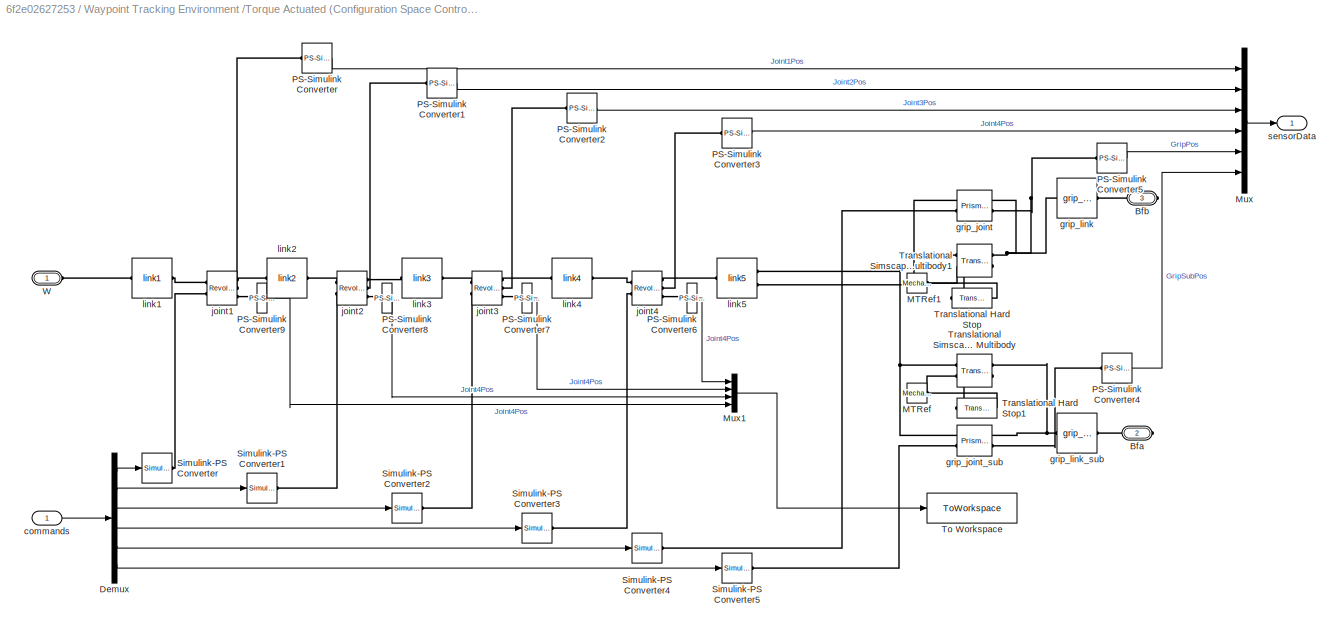
BLOCK [SubSystem] Waypoint Tracking Environment /Torque Actuated (Configuration Space Controller)/Robot (Torque Actuated)
  AncestorBlock = OpenManipulatorLib/Robot \n(Torque Actuated)
  Ports = [1, 1, 0, 0, 0, 1, 2]
  RequestExecContextInheritance = off
BLOCK [PMIOPort] Waypoint Tracking Environment /Torque Actuated (Configuration Space Controller)/Robot (Torque Actuated)/Bfa
  Port = 2
  Side = Right
BLOCK [PMIOPort] Waypoint Tracking Environment /Torque Actuated (Configuration Space Controller)/Robot (Torque Actuated)/Bfb
  Port = 3
  Side = Right
BLOCK [Demux] Waypoint Tracking Environment /Torque Actuated (Configuration Space Controller)/Robot (Torque Actuated)/Demux
  Outputs = 6
  Ports = [1, 6]
BLOCK [Reference] Waypoint Tracking Environment /Torque Actuated (Configuration Space Controller)/Robot (Torque Actuated)/MTRef  REF=fl_lib/Mechanical/Translational
Elements/Mechanical
Translational
Reference
  Ports = [0, 0, 0, 0, 0, 1]
  SourceBlock = fl_lib/Mechanical/Translational\nElements/Mechanical\nTranslational\nReference
  SourceProductBaseCode = SS
  SourceType = Mechanical\nTranslational\nReference
BLOCK [Reference] Waypoint Tracking Environment /Torque Actuated (Configuration Space Controller)/Robot (Torque Actuated)/MTRef1  REF=fl_lib/Mechanical/Translational
Elements/Mechanical
Translational
Reference
  Ports = [0, 0, 0, 0, 0, 1]
  SourceBlock = fl_lib/Mechanical/Translational\nElements/Mechanical\nTranslational\nReference
  SourceProductBaseCode = SS
  SourceType = Mechanical\nTranslational\nReference
BLOCK [Mux] Waypoint Tracking Environment /Torque Actuated (Configuration Space Controller)/Robot (Torque Actuated)/Mux
  DisplayOption = bar
  Inputs = 6
  Ports = [6, 1]
BLOCK [Mux] Waypoint Tracking Environment /Torque Actuated (Configuration Space Controller)/Robot (Torque Actuated)/Mux1
  DisplayOption = bar
  Ports = [4, 1]
BLOCK [Reference] Waypoint Tracking Environment /Torque Actuated (Configuration Space Controller)/Robot (Torque Actuated)/PS-Simulink Converter  REF=nesl_utility/PS-Simulink
Converter
  Ports = [0, 1, 0, 0, 0, 1]
  SourceBlock = nesl_utility/PS-Simulink\nConverter
  SourceProductBaseCode = SS
  SourceType = PS-Simulink\nConverter
BLOCK [Reference] Waypoint Tracking Environment /Torque Actuated (Configuration Space Controller)/Robot (Torque Actuated)/PS-Simulink Converter1  REF=nesl_utility/PS-Simulink
Converter
  Ports = [0, 1, 0, 0, 0, 1]
  SourceBlock = nesl_utility/PS-Simulink\nConverter
  SourceProductBaseCode = SS
  SourceType = PS-Simulink\nConverter
BLOCK [Reference] Waypoint Tracking Environment /Torque Actuated (Configuration Space Controller)/Robot (Torque Actuated)/PS-Simulink Converter2  REF=nesl_utility/PS-Simulink
Converter
  Ports = [0, 1, 0, 0, 0, 1]
  SourceBlock = nesl_utility/PS-Simulink\nConverter
  SourceProductBaseCode = SS
  SourceType = PS-Simulink\nConverter
BLOCK [Reference] Waypoint Tracking Environment /Torque Actuated (Configuration Space Controller)/Robot (Torque Actuated)/PS-Simulink Converter3  REF=nesl_utility/PS-Simulink
Converter
  Ports = [0, 1, 0, 0, 0, 1]
  SourceBlock = nesl_utility/PS-Simulink\nConverter
  SourceProductBaseCode = SS
  SourceType = PS-Simulink\nConverter
BLOCK [Reference] Waypoint Tracking Environment /Torque Actuated (Configuration Space Controller)/Robot (Torque Actuated)/PS-Simulink Converter4  REF=nesl_utility/PS-Simulink
Converter
  Ports = [0, 1, 0, 0, 0, 1]
  SourceBlock = nesl_utility/PS-Simulink\nConverter
  SourceProductBaseCode = SS
  SourceType = PS-Simulink\nConverter
BLOCK [Reference] Waypoint Tracking Environment /Torque Actuated (Configuration Space Controller)/Robot (Torque Actuated)/PS-Simulink Converter5  REF=nesl_utility/PS-Simulink
Converter
  Ports = [0, 1, 0, 0, 0, 1]
  SourceBlock = nesl_utility/PS-Simulink\nConverter
  SourceProductBaseCode = SS
  SourceType = PS-Simulink\nConverter
BLOCK [Reference] Waypoint Tracking Environment /Torque Actuated (Configuration Space Controller)/Robot (Torque Actuated)/PS-Simulink Converter6  REF=nesl_utility/PS-Simulink
Converter
  Ports = [0, 1, 0, 0, 0, 1]
  SourceBlock = nesl_utility/PS-Simulink\nConverter
  SourceProductBaseCode = SS
  SourceType = PS-Simulink\nConverter
BLOCK [Reference] Waypoint Tracking Environment /Torque Actuated (Configuration Space Controller)/Robot (Torque Actuated)/PS-Simulink Converter7  REF=nesl_utility/PS-Simulink
Converter
  Ports = [0, 1, 0, 0, 0, 1]
  SourceBlock = nesl_utility/PS-Simulink\nConverter
  SourceProductBaseCode = SS
  SourceType = PS-Simulink\nConverter
BLOCK [Reference] Waypoint Tracking Environment /Torque Actuated (Configuration Space Controller)/Robot (Torque Actuated)/PS-Simulink Converter8  REF=nesl_utility/PS-Simulink
Converter
  Ports = [0, 1, 0, 0, 0, 1]
  SourceBlock = nesl_utility/PS-Simulink\nConverter
  SourceProductBaseCode = SS
  SourceType = PS-Simulink\nConverter
BLOCK [Reference] Waypoint Tracking Environment /Torque Actuated (Configuration Space Controller)/Robot (Torque Actuated)/PS-Simulink Converter9  REF=nesl_utility/PS-Simulink
Converter
  Ports = [0, 1, 0, 0, 0, 1]
  SourceBlock = nesl_utility/PS-Simulink\nConverter
  SourceProductBaseCode = SS
  SourceType = PS-Simulink\nConverter
BLOCK [Reference] Waypoint Tracking Environment /Torque Actuated (Configuration Space Controller)/Robot (Torque Actuated)/Simulink-PS Converter  REF=nesl_utility/Simulink-PS
Converter
  Ports = [1, 0, 0, 0, 0, 0, 1]
  SourceBlock = nesl_utility/Simulink-PS\nConverter
  SourceProductBaseCode = SS
  SourceType = Simulink-PS\nConverter
BLOCK [Reference] Waypoint Tracking Environment /Torque Actuated (Configuration Space Controller)/Robot (Torque Actuated)/Simulink-PS Converter1  REF=nesl_utility/Simulink-PS
Converter
  Ports = [1, 0, 0, 0, 0, 0, 1]
  SourceBlock = nesl_utility/Simulink-PS\nConverter
  SourceProductBaseCode = SS
  SourceType = Simulink-PS\nConverter
BLOCK [Reference] Waypoint Tracking Environment /Torque Actuated (Configuration Space Controller)/Robot (Torque Actuated)/Simulink-PS Converter2  REF=nesl_utility/Simulink-PS
Converter
  Ports = [1, 0, 0, 0, 0, 0, 1]
  SourceBlock = nesl_utility/Simulink-PS\nConverter
  SourceProductBaseCode = SS
  SourceType = Simulink-PS\nConverter
BLOCK [Reference] Waypoint Tracking Environment /Torque Actuated (Configuration Space Controller)/Robot (Torque Actuated)/Simulink-PS Converter3  REF=nesl_utility/Simulink-PS
Converter
  Ports = [1, 0, 0, 0, 0, 0, 1]
  SourceBlock = nesl_utility/Simulink-PS\nConverter
  SourceProductBaseCode = SS
  SourceType = Simulink-PS\nConverter
BLOCK [Reference] Waypoint Tracking Environment /Torque Actuated (Configuration Space Controller)/Robot (Torque Actuated)/Simulink-PS Converter4  REF=nesl_utility/Simulink-PS
Converter
  Ports = [1, 0, 0, 0, 0, 0, 1]
  SourceBlock = nesl_utility/Simulink-PS\nConverter
  SourceProductBaseCode = SS
  SourceType = Simulink-PS\nConverter
BLOCK [Reference] Waypoint Tracking Environment /Torque Actuated (Configuration Space Controller)/Robot (Torque Actuated)/Simulink-PS Converter5  REF=nesl_utility/Simulink-PS
Converter
  Ports = [1, 0, 0, 0, 0, 0, 1]
  SourceBlock = nesl_utility/Simulink-PS\nConverter
  SourceProductBaseCode = SS
  SourceType = Simulink-PS\nConverter
BLOCK [ToWorkspace] Waypoint Tracking Environment /Torque Actuated (Configuration Space Controller)/Robot (Torque Actuated)/To Workspace
  FixptAsFi = on
  MaxDataPoints = inf
  Ports = [1]
  SampleTime = -1
  SaveFormat = Structure With Time
  VariableName = outTor
BLOCK [Reference] Waypoint Tracking Environment /Torque Actuated (Configuration Space Controller)/Robot (Torque Actuated)/Translational Hard Stop  REF=fl_lib/Mechanical/Translational
Elements/Translational Hard
Stop
  NameLocation = top
  Ports = [0, 0, 0, 0, 0, 1, 1]
  SourceBlock = fl_lib/Mechanical/Translational\nElements/Translational Hard\nStop
  SourceProductBaseCode = SS
  SourceType = Translational Hard\nStop
BLOCK [Reference] Waypoint Tracking Environment /Torque Actuated (Configuration Space Controller)/Robot (Torque Actuated)/Translational Hard Stop1  REF=fl_lib/Mechanical/Translational
Elements/Translational Hard
Stop
  NameLocation = top
  Ports = [0, 0, 0, 0, 0, 1, 1]
  SourceBlock = fl_lib/Mechanical/Translational\nElements/Translational Hard\nStop
  SourceProductBaseCode = SS
  SourceType = Translational Hard\nStop
BLOCK [Reference] Waypoint Tracking Environment /Torque Actuated (Configuration Space Controller)/Robot (Torque Actuated)/Translational Simscape Multibody  REF=Multibody_Multiphysics_Lib/Interfaces/Translational
Simscape Multibody
  Ports = [0, 0, 0, 0, 0, 2, 2]
  SourceBlock = Multibody_Multiphysics_Lib/Interfaces/Translational\nSimscape Multibody
  SourceProductName = Simscape Multibody Multiphysics Library
  SourceType = SubSystem
BLOCK [Reference] Waypoint Tracking Environment /Torque Actuated (Configuration Space Controller)/Robot (Torque Actuated)/Translational Simscape Multibody1  REF=Multibody_Multiphysics_Lib/Interfaces/Translational
Simscape Multibody
  Ports = [0, 0, 0, 0, 0, 2, 2]
  SourceBlock = Multibody_Multiphysics_Lib/Interfaces/Translational\nSimscape Multibody
  SourceProductName = Simscape Multibody Multiphysics Library
  SourceType = SubSystem
BLOCK [PMIOPort] Waypoint Tracking Environment /Torque Actuated (Configuration Space Controller)/Robot (Torque Actuated)/W
  Side = Left
BLOCK [Inport] Waypoint Tracking Environment /Torque Actuated (Configuration Space Controller)/Robot (Torque Actuated)/commands
BLOCK [Reference] Waypoint Tracking Environment /Torque Actuated (Configuration Space Controller)/Robot (Torque Actuated)/grip_joint  REF=sm_lib/Joints/Prismatic
Joint
  Ports = [0, 0, 0, 0, 0, 2, 2]
  SourceBlock = sm_lib/Joints/Prismatic\nJoint
  SourceProductBaseCode = MS
  SourceType = Prismatic\nJoint
BLOCK [Reference] Waypoint Tracking Environment /Torque Actuated (Configuration Space Controller)/Robot (Torque Actuated)/grip_joint_sub  REF=sm_lib/Joints/Prismatic
Joint
  Ports = [0, 0, 0, 0, 0, 2, 2]
  SourceBlock = sm_lib/Joints/Prismatic\nJoint
  SourceProductBaseCode = MS
  SourceType = Prismatic\nJoint
BLOCK [Reference] Waypoint Tracking Environment /Torque Actuated (Configuration Space Controller)/Robot (Torque Actuated)/grip_link  REF=OpenManipulatorLib/Robot 
(Motion Actuated)/grip_link
  Ports = [0, 0, 0, 0, 0, 1, 1]
  SourceBlock = OpenManipulatorLib/Robot \n(Motion Actuated)/grip_link
BLOCK [Reference] Waypoint Tracking Environment /Torque Actuated (Configuration Space Controller)/Robot (Torque Actuated)/grip_link_sub  REF=OpenManipulatorLib/Robot 
(Motion Actuated)/grip_link_sub
  Ports = [0, 0, 0, 0, 0, 1, 1]
  SourceBlock = OpenManipulatorLib/Robot \n(Motion Actuated)/grip_link_sub
BLOCK [Reference] Waypoint Tracking Environment /Torque Actuated (Configuration Space Controller)/Robot (Torque Actuated)/joint1  REF=sm_lib/Joints/Revolute Joint
  Ports = [0, 0, 0, 0, 0, 2, 3]
  SourceBlock = sm_lib/Joints/Revolute Joint
  SourceProductBaseCode = MS
  SourceType = Revolute Joint
BLOCK [Reference] Waypoint Tracking Environment /Torque Actuated (Configuration Space Controller)/Robot (Torque Actuated)/joint2  REF=sm_lib/Joints/Revolute Joint
  Ports = [0, 0, 0, 0, 0, 2, 3]
  SourceBlock = sm_lib/Joints/Revolute Joint
  SourceProductBaseCode = MS
  SourceType = Revolute Joint
BLOCK [Reference] Waypoint Tracking Environment /Torque Actuated (Configuration Space Controller)/Robot (Torque Actuated)/joint3  REF=sm_lib/Joints/Revolute Joint
  Ports = [0, 0, 0, 0, 0, 2, 3]
  SourceBlock = sm_lib/Joints/Revolute Joint
  SourceProductBaseCode = MS
  SourceType = Revolute Joint
BLOCK [Reference] Waypoint Tracking Environment /Torque Actuated (Configuration Space Controller)/Robot (Torque Actuated)/joint4  REF=sm_lib/Joints/Revolute Joint
  Ports = [0, 0, 0, 0, 0, 2, 3]
  SourceBlock = sm_lib/Joints/Revolute Joint
  SourceProductBaseCode = MS
  SourceType = Revolute Joint
BLOCK [Reference] Waypoint Tracking Environment /Torque Actuated (Configuration Space Controller)/Robot (Torque Actuated)/link1  REF=OpenManipulatorLib/Robot 
(Motion Actuated)/link1
  Ports = [0, 0, 0, 0, 0, 1, 1]
  SourceBlock = OpenManipulatorLib/Robot \n(Motion Actuated)/link1
BLOCK [Reference] Waypoint Tracking Environment /Torque Actuated (Configuration Space Controller)/Robot (Torque Actuated)/link2  REF=OpenManipulatorLib/Robot 
(Motion Actuated)/link2
  Ports = [0, 0, 0, 0, 0, 1, 1]
  SourceBlock = OpenManipulatorLib/Robot \n(Motion Actuated)/link2
BLOCK [Reference] Waypoint Tracking Environment /Torque Actuated (Configuration Space Controller)/Robot (Torque Actuated)/link3  REF=OpenManipulatorLib/Robot 
(Motion Actuated)/link3
  Ports = [0, 0, 0, 0, 0, 1, 1]
  SourceBlock = OpenManipulatorLib/Robot \n(Motion Actuated)/link3
BLOCK [Reference] Waypoint Tracking Environment /Torque Actuated (Configuration Space Controller)/Robot (Torque Actuated)/link4  REF=OpenManipulatorLib/Robot 
(Motion Actuated)/link4
  Ports = [0, 0, 0, 0, 0, 1, 1]
  SourceBlock = OpenManipulatorLib/Robot \n(Motion Actuated)/link4
BLOCK [Reference] Waypoint Tracking Environment /Torque Actuated (Configuration Space Controller)/Robot (Torque Actuated)/link5  REF=OpenManipulatorLib/Robot 
(Motion Actuated)/link5
  Ports = [0, 0, 0, 0, 0, 1, 2]
  SourceBlock = OpenManipulatorLib/Robot \n(Motion Actuated)/link5
BLOCK [Outport] Waypoint Tracking Environment /Torque Actuated (Configuration Space Controller)/Robot (Torque Actuated)/sensorData
  VectorParamsAs1DForOutWhenUnconnected = off
BLOCK [Scope] Waypoint Tracking Environment /Torque Actuated (Configuration Space Controller)/Scope
  Floating = off
  NumInputPorts = 1
  Ports = [1]
  ScopeSpecificationString = Simulink.scopes.TimeScopeBlockCfg('CurrentConfiguration', extmgr.ConfigurationSet(extmgr.Configuration('Core','General UI',true),extmgr.Configuration('Core','Source UI',true),extmgr.Configuration('Sources','WiredSimulink',true),extmgr.Configuration('Visuals','Time Domain',true,'SerializedDisplays',{struct('MinYLimReal','18.75','MaxYLimReal','31.25','YLabelReal','','MinYLimMag','18.75','MaxYLimMag'...<+1331ch>
BLOCK [Scope] Waypoint Tracking Environment /Torque Actuated (Configuration Space Controller)/Scope1
  Floating = off
  NumInputPorts = 1
  Ports = [1]
  ScopeSpecificationString = Simulink.scopes.TimeScopeBlockCfg('CurrentConfiguration', extmgr.ConfigurationSet(extmgr.Configuration('Core','General UI',true),extmgr.Configuration('Core','Source UI',true),extmgr.Configuration('Sources','WiredSimulink',true,'DataLoggingVariableName','ScopeData1'),extmgr.Configuration('Visuals','Time Domain',true,'SerializedDisplays',{struct('MinYLimReal','-1.38436','MaxYLimReal','2.37604','YLab...<+1482ch>
BLOCK [Reference] Waypoint Tracking Environment /Torque Actuated (Configuration Space Controller)/Solver Configuration  REF=nesl_utility/Solver
Configuration
  Ports = [0, 0, 0, 0, 0, 0, 1]
  SourceBlock = nesl_utility/Solver\nConfiguration
  SourceProductBaseCode = SS
  SourceType = Solver\nConfiguration
BLOCK [ToWorkspace] Waypoint Tracking Environment /Torque Actuated (Configuration Space Controller)/To Workspace
  FixptAsFi = on
  MaxDataPoints = inf
  Ports = [1]
  SampleTime = 0.05
  SaveFormat = Structure With Time
  VariableName = outAngles
BLOCK [PMIOPort] Waypoint Tracking Environment /Torque Actuated (Configuration Space Controller)/W
  Side = Left
BLOCK [Reference] Waypoint Tracking Environment /Torque Actuated (Configuration Space Controller)/World  REF=sm_lib/Frames and
Transforms/World Frame
  NameLocation = top
  Ports = [0, 0, 0, 0, 0, 0, 1]
  SourceBlock = sm_lib/Frames and\nTransforms/World Frame
  SourceProductBaseCode = MS
  SourceType = World Frame
BLOCK [Outport] Waypoint Tracking Environment /Torque Actuated (Configuration Space Controller)/eePos
  VectorParamsAs1DForOutWhenUnconnected = off
BLOCK [Inport] Waypoint Tracking Environment /Torque Actuated (Configuration Space Controller)/grip
  Port = 2
BLOCK [Outport] Waypoint Tracking Environment /Torque Actuated (Configuration Space Controller)/gripForce
  Port = 2
  VectorParamsAs1DForOutWhenUnconnected = off
BLOCK [Inport] Waypoint Tracking Environment /Torque Actuated (Configuration Space Controller)/pRef 
BLOCK [SubSystem] Waypoint Tracking Environment /Torque Actuated (Configuration Space Controller)/world
  Ports = [0, 0, 0, 0, 0, 1, 1]
  RequestExecContextInheritance = off
BLOCK [PMIOPort] Waypoint Tracking Environment /Torque Actuated (Configuration Space Controller)/world/F
  Side = Left
BLOCK [PMIOPort] Waypoint Tracking Environment /Torque Actuated (Configuration Space Controller)/world/F1
  Port = 2
  Side = Right
BLOCK [Reference] Waypoint Tracking Environment /Torque Actuated (Configuration Space Controller)/world/ReferenceFrame  REF=sm_lib/Frames and
Transforms/Reference
Frame
  Ports = [0, 0, 0, 0, 0, 0, 1]
  SourceBlock = sm_lib/Frames and\nTransforms/Reference\nFrame
  SourceProductBaseCode = MS
  SourceType = Reference\nFrame
BLOCK [Reference] Waypoint Tracking Environment /Torque Actuated (Configuration Space Controller)/world/world_fixed_OriginTransform  REF=sm_lib/Frames and
Transforms/Rigid
Transform
  Ports = [0, 0, 0, 0, 0, 1, 1]
  SourceBlock = sm_lib/Frames and\nTransforms/Rigid\nTransform
  SourceProductBaseCode = MS
  SourceType = Rigid\nTransform
BLOCK [SubSystem] Waypoint Tracking Environment /Torque Actuated (Task Space Controller)
  Ports = [2, 2, 0, 0, 0, 1]
  RequestExecContextInheritance = off
  VariantControl = actuatorType==3
BLOCK [Reference] Waypoint Tracking Environment /Torque Actuated (Task Space Controller)/Ball and Floor  REF=OpenManipulatorLib/Ball and Floor
  Ports = [0, 1, 0, 0, 0, 1, 3]
  SourceBlock = OpenManipulatorLib/Ball and Floor
  SourceType = Ball and Floor
BLOCK [Reference] Waypoint Tracking Environment /Torque Actuated (Task Space Controller)/Forward Kinematics  REF=OpenManipulatorLib/Forward Kinematics
  Ports = [1, 1]
  SourceBlock = OpenManipulatorLib/Forward Kinematics
  SourceType = SubSystem
BLOCK [Reference] Waypoint Tracking Environment /Torque Actuated (Task Space Controller)/Joint Controller (Task Space)  REF=OpenManipulatorLib/Joint Controller (Task Space)
  Ports = [3, 1]
  SourceBlock = OpenManipulatorLib/Joint Controller (Task Space)
BLOCK [Reference] Waypoint Tracking Environment /Torque Actuated (Task Space Controller)/MechanismConfiguration  REF=sm_lib/Utilities/Mechanism
Configuration
  Ports = [0, 0, 0, 0, 0, 0, 1]
  SourceBlock = sm_lib/Utilities/Mechanism\nConfiguration
  SourceProductBaseCode = MS
  SourceType = Mechanism\nConfiguration
BLOCK [Mux] Waypoint Tracking Environment /Torque Actuated (Task Space Controller)/Mux
  DisplayOption = bar
  Inputs = 2
  Ports = [2, 1]
BLOCK [RateTransition] Waypoint Tracking Environment /Torque Actuated (Task Space Controller)/Rate Transition
BLOCK [RateTransition] Waypoint Tracking Environment /Torque Actuated (Task Space Controller)/Rate Transition1
BLOCK [RateTransition] Waypoint Tracking Environment /Torque Actuated (Task Space Controller)/Rate Transition2
  OutPortSampleTimeOpt = Inherit
BLOCK [RateTransition] Waypoint Tracking Environment /Torque Actuated (Task Space Controller)/Rate Transition3
BLOCK [RateTransition] Waypoint Tracking Environment /Torque Actuated (Task Space Controller)/Rate Transition4
BLOCK [SubSystem] Waypoint Tracking Environment /Torque Actuated (Task Space Controller)/Robot (Torque Actuated)
  AncestorBlock = OpenManipulatorLib/Robot \n(Torque Actuated)
  Ports = [1, 1, 0, 0, 0, 1, 2]
  RequestExecContextInheritance = off
BLOCK [PMIOPort] Waypoint Tracking Environment /Torque Actuated (Task Space Controller)/Robot (Torque Actuated)/Bfa
  Port = 2
  Side = Right
BLOCK [PMIOPort] Waypoint Tracking Environment /Torque Actuated (Task Space Controller)/Robot (Torque Actuated)/Bfb
  Port = 3
  Side = Right
BLOCK [Demux] Waypoint Tracking Environment /Torque Actuated (Task Space Controller)/Robot (Torque Actuated)/Demux
  Outputs = 6
  Ports = [1, 6]
BLOCK [Reference] Waypoint Tracking Environment /Torque Actuated (Task Space Controller)/Robot (Torque Actuated)/MTRef  REF=fl_lib/Mechanical/Translational
Elements/Mechanical
Translational
Reference
  Ports = [0, 0, 0, 0, 0, 1]
  SourceBlock = fl_lib/Mechanical/Translational\nElements/Mechanical\nTranslational\nReference
  SourceProductBaseCode = SS
  SourceType = Mechanical\nTranslational\nReference
BLOCK [Reference] Waypoint Tracking Environment /Torque Actuated (Task Space Controller)/Robot (Torque Actuated)/MTRef1  REF=fl_lib/Mechanical/Translational
Elements/Mechanical
Translational
Reference
  Ports = [0, 0, 0, 0, 0, 1]
  SourceBlock = fl_lib/Mechanical/Translational\nElements/Mechanical\nTranslational\nReference
  SourceProductBaseCode = SS
  SourceType = Mechanical\nTranslational\nReference
BLOCK [Mux] Waypoint Tracking Environment /Torque Actuated (Task Space Controller)/Robot (Torque Actuated)/Mux
  DisplayOption = bar
  Inputs = 6
  Ports = [6, 1]
BLOCK [Mux] Waypoint Tracking Environment /Torque Actuated (Task Space Controller)/Robot (Torque Actuated)/Mux1
  DisplayOption = bar
  Ports = [4, 1]
BLOCK [Reference] Waypoint Tracking Environment /Torque Actuated (Task Space Controller)/Robot (Torque Actuated)/PS-Simulink Converter  REF=nesl_utility/PS-Simulink
Converter
  Ports = [0, 1, 0, 0, 0, 1]
  SourceBlock = nesl_utility/PS-Simulink\nConverter
  SourceProductBaseCode = SS
  SourceType = PS-Simulink\nConverter
BLOCK [Reference] Waypoint Tracking Environment /Torque Actuated (Task Space Controller)/Robot (Torque Actuated)/PS-Simulink Converter1  REF=nesl_utility/PS-Simulink
Converter
  Ports = [0, 1, 0, 0, 0, 1]
  SourceBlock = nesl_utility/PS-Simulink\nConverter
  SourceProductBaseCode = SS
  SourceType = PS-Simulink\nConverter
BLOCK [Reference] Waypoint Tracking Environment /Torque Actuated (Task Space Controller)/Robot (Torque Actuated)/PS-Simulink Converter2  REF=nesl_utility/PS-Simulink
Converter
  Ports = [0, 1, 0, 0, 0, 1]
  SourceBlock = nesl_utility/PS-Simulink\nConverter
  SourceProductBaseCode = SS
  SourceType = PS-Simulink\nConverter
BLOCK [Reference] Waypoint Tracking Environment /Torque Actuated (Task Space Controller)/Robot (Torque Actuated)/PS-Simulink Converter3  REF=nesl_utility/PS-Simulink
Converter
  Ports = [0, 1, 0, 0, 0, 1]
  SourceBlock = nesl_utility/PS-Simulink\nConverter
  SourceProductBaseCode = SS
  SourceType = PS-Simulink\nConverter
BLOCK [Reference] Waypoint Tracking Environment /Torque Actuated (Task Space Controller)/Robot (Torque Actuated)/PS-Simulink Converter4  REF=nesl_utility/PS-Simulink
Converter
  Ports = [0, 1, 0, 0, 0, 1]
  SourceBlock = nesl_utility/PS-Simulink\nConverter
  SourceProductBaseCode = SS
  SourceType = PS-Simulink\nConverter
BLOCK [Reference] Waypoint Tracking Environment /Torque Actuated (Task Space Controller)/Robot (Torque Actuated)/PS-Simulink Converter5  REF=nesl_utility/PS-Simulink
Converter
  Ports = [0, 1, 0, 0, 0, 1]
  SourceBlock = nesl_utility/PS-Simulink\nConverter
  SourceProductBaseCode = SS
  SourceType = PS-Simulink\nConverter
BLOCK [Reference] Waypoint Tracking Environment /Torque Actuated (Task Space Controller)/Robot (Torque Actuated)/PS-Simulink Converter6  REF=nesl_utility/PS-Simulink
Converter
  Ports = [0, 1, 0, 0, 0, 1]
  SourceBlock = nesl_utility/PS-Simulink\nConverter
  SourceProductBaseCode = SS
  SourceType = PS-Simulink\nConverter
BLOCK [Reference] Waypoint Tracking Environment /Torque Actuated (Task Space Controller)/Robot (Torque Actuated)/PS-Simulink Converter7  REF=nesl_utility/PS-Simulink
Converter
  Ports = [0, 1, 0, 0, 0, 1]
  SourceBlock = nesl_utility/PS-Simulink\nConverter
  SourceProductBaseCode = SS
  SourceType = PS-Simulink\nConverter
BLOCK [Reference] Waypoint Tracking Environment /Torque Actuated (Task Space Controller)/Robot (Torque Actuated)/PS-Simulink Converter8  REF=nesl_utility/PS-Simulink
Converter
  Ports = [0, 1, 0, 0, 0, 1]
  SourceBlock = nesl_utility/PS-Simulink\nConverter
  SourceProductBaseCode = SS
  SourceType = PS-Simulink\nConverter
BLOCK [Reference] Waypoint Tracking Environment /Torque Actuated (Task Space Controller)/Robot (Torque Actuated)/PS-Simulink Converter9  REF=nesl_utility/PS-Simulink
Converter
  Ports = [0, 1, 0, 0, 0, 1]
  SourceBlock = nesl_utility/PS-Simulink\nConverter
  SourceProductBaseCode = SS
  SourceType = PS-Simulink\nConverter
BLOCK [Reference] Waypoint Tracking Environment /Torque Actuated (Task Space Controller)/Robot (Torque Actuated)/Simulink-PS Converter  REF=nesl_utility/Simulink-PS
Converter
  Ports = [1, 0, 0, 0, 0, 0, 1]
  SourceBlock = nesl_utility/Simulink-PS\nConverter
  SourceProductBaseCode = SS
  SourceType = Simulink-PS\nConverter
BLOCK [Reference] Waypoint Tracking Environment /Torque Actuated (Task Space Controller)/Robot (Torque Actuated)/Simulink-PS Converter1  REF=nesl_utility/Simulink-PS
Converter
  Ports = [1, 0, 0, 0, 0, 0, 1]
  SourceBlock = nesl_utility/Simulink-PS\nConverter
  SourceProductBaseCode = SS
  SourceType = Simulink-PS\nConverter
BLOCK [Reference] Waypoint Tracking Environment /Torque Actuated (Task Space Controller)/Robot (Torque Actuated)/Simulink-PS Converter2  REF=nesl_utility/Simulink-PS
Converter
  Ports = [1, 0, 0, 0, 0, 0, 1]
  SourceBlock = nesl_utility/Simulink-PS\nConverter
  SourceProductBaseCode = SS
  SourceType = Simulink-PS\nConverter
BLOCK [Reference] Waypoint Tracking Environment /Torque Actuated (Task Space Controller)/Robot (Torque Actuated)/Simulink-PS Converter3  REF=nesl_utility/Simulink-PS
Converter
  Ports = [1, 0, 0, 0, 0, 0, 1]
  SourceBlock = nesl_utility/Simulink-PS\nConverter
  SourceProductBaseCode = SS
  SourceType = Simulink-PS\nConverter
BLOCK [Reference] Waypoint Tracking Environment /Torque Actuated (Task Space Controller)/Robot (Torque Actuated)/Simulink-PS Converter4  REF=nesl_utility/Simulink-PS
Converter
  Ports = [1, 0, 0, 0, 0, 0, 1]
  SourceBlock = nesl_utility/Simulink-PS\nConverter
  SourceProductBaseCode = SS
  SourceType = Simulink-PS\nConverter
BLOCK [Reference] Waypoint Tracking Environment /Torque Actuated (Task Space Controller)/Robot (Torque Actuated)/Simulink-PS Converter5  REF=nesl_utility/Simulink-PS
Converter
  Ports = [1, 0, 0, 0, 0, 0, 1]
  SourceBlock = nesl_utility/Simulink-PS\nConverter
  SourceProductBaseCode = SS
  SourceType = Simulink-PS\nConverter
BLOCK [ToWorkspace] Waypoint Tracking Environment /Torque Actuated (Task Space Controller)/Robot (Torque Actuated)/To Workspace
  FixptAsFi = on
  MaxDataPoints = inf
  Ports = [1]
  SampleTime = -1
  SaveFormat = Structure With Time
  VariableName = outTor
BLOCK [Reference] Waypoint Tracking Environment /Torque Actuated (Task Space Controller)/Robot (Torque Actuated)/Translational Hard Stop  REF=fl_lib/Mechanical/Translational
Elements/Translational Hard
Stop
  NameLocation = top
  Ports = [0, 0, 0, 0, 0, 1, 1]
  SourceBlock = fl_lib/Mechanical/Translational\nElements/Translational Hard\nStop
  SourceProductBaseCode = SS
  SourceType = Translational Hard\nStop
BLOCK [Reference] Waypoint Tracking Environment /Torque Actuated (Task Space Controller)/Robot (Torque Actuated)/Translational Hard Stop1  REF=fl_lib/Mechanical/Translational
Elements/Translational Hard
Stop
  NameLocation = top
  Ports = [0, 0, 0, 0, 0, 1, 1]
  SourceBlock = fl_lib/Mechanical/Translational\nElements/Translational Hard\nStop
  SourceProductBaseCode = SS
  SourceType = Translational Hard\nStop
BLOCK [Reference] Waypoint Tracking Environment /Torque Actuated (Task Space Controller)/Robot (Torque Actuated)/Translational Simscape Multibody  REF=Multibody_Multiphysics_Lib/Interfaces/Translational
Simscape Multibody
  Ports = [0, 0, 0, 0, 0, 2, 2]
  SourceBlock = Multibody_Multiphysics_Lib/Interfaces/Translational\nSimscape Multibody
  SourceProductName = Simscape Multibody Multiphysics Library
  SourceType = SubSystem
BLOCK [Reference] Waypoint Tracking Environment /Torque Actuated (Task Space Controller)/Robot (Torque Actuated)/Translational Simscape Multibody1  REF=Multibody_Multiphysics_Lib/Interfaces/Translational
Simscape Multibody
  Ports = [0, 0, 0, 0, 0, 2, 2]
  SourceBlock = Multibody_Multiphysics_Lib/Interfaces/Translational\nSimscape Multibody
  SourceProductName = Simscape Multibody Multiphysics Library
  SourceType = SubSystem
BLOCK [PMIOPort] Waypoint Tracking Environment /Torque Actuated (Task Space Controller)/Robot (Torque Actuated)/W
  Side = Left
BLOCK [Inport] Waypoint Tracking Environment /Torque Actuated (Task Space Controller)/Robot (Torque Actuated)/commands
BLOCK [Reference] Waypoint Tracking Environment /Torque Actuated (Task Space Controller)/Robot (Torque Actuated)/grip_joint  REF=sm_lib/Joints/Prismatic
Joint
  Ports = [0, 0, 0, 0, 0, 2, 2]
  SourceBlock = sm_lib/Joints/Prismatic\nJoint
  SourceProductBaseCode = MS
  SourceType = Prismatic\nJoint
BLOCK [Reference] Waypoint Tracking Environment /Torque Actuated (Task Space Controller)/Robot (Torque Actuated)/grip_joint_sub  REF=sm_lib/Joints/Prismatic
Joint
  Ports = [0, 0, 0, 0, 0, 2, 2]
  SourceBlock = sm_lib/Joints/Prismatic\nJoint
  SourceProductBaseCode = MS
  SourceType = Prismatic\nJoint
BLOCK [Reference] Waypoint Tracking Environment /Torque Actuated (Task Space Controller)/Robot (Torque Actuated)/grip_link  REF=OpenManipulatorLib/Robot 
(Motion Actuated)/grip_link
  Ports = [0, 0, 0, 0, 0, 1, 1]
  SourceBlock = OpenManipulatorLib/Robot \n(Motion Actuated)/grip_link
BLOCK [Reference] Waypoint Tracking Environment /Torque Actuated (Task Space Controller)/Robot (Torque Actuated)/grip_link_sub  REF=OpenManipulatorLib/Robot 
(Motion Actuated)/grip_link_sub
  Ports = [0, 0, 0, 0, 0, 1, 1]
  SourceBlock = OpenManipulatorLib/Robot \n(Motion Actuated)/grip_link_sub
BLOCK [Reference] Waypoint Tracking Environment /Torque Actuated (Task Space Controller)/Robot (Torque Actuated)/joint1  REF=sm_lib/Joints/Revolute Joint
  Ports = [0, 0, 0, 0, 0, 2, 3]
  SourceBlock = sm_lib/Joints/Revolute Joint
  SourceProductBaseCode = MS
  SourceType = Revolute Joint
BLOCK [Reference] Waypoint Tracking Environment /Torque Actuated (Task Space Controller)/Robot (Torque Actuated)/joint2  REF=sm_lib/Joints/Revolute Joint
  Ports = [0, 0, 0, 0, 0, 2, 3]
  SourceBlock = sm_lib/Joints/Revolute Joint
  SourceProductBaseCode = MS
  SourceType = Revolute Joint
BLOCK [Reference] Waypoint Tracking Environment /Torque Actuated (Task Space Controller)/Robot (Torque Actuated)/joint3  REF=sm_lib/Joints/Revolute Joint
  Ports = [0, 0, 0, 0, 0, 2, 3]
  SourceBlock = sm_lib/Joints/Revolute Joint
  SourceProductBaseCode = MS
  SourceType = Revolute Joint
BLOCK [Reference] Waypoint Tracking Environment /Torque Actuated (Task Space Controller)/Robot (Torque Actuated)/joint4  REF=sm_lib/Joints/Revolute Joint
  Ports = [0, 0, 0, 0, 0, 2, 3]
  SourceBlock = sm_lib/Joints/Revolute Joint
  SourceProductBaseCode = MS
  SourceType = Revolute Joint
BLOCK [Reference] Waypoint Tracking Environment /Torque Actuated (Task Space Controller)/Robot (Torque Actuated)/link1  REF=OpenManipulatorLib/Robot 
(Motion Actuated)/link1
  Ports = [0, 0, 0, 0, 0, 1, 1]
  SourceBlock = OpenManipulatorLib/Robot \n(Motion Actuated)/link1
BLOCK [Reference] Waypoint Tracking Environment /Torque Actuated (Task Space Controller)/Robot (Torque Actuated)/link2  REF=OpenManipulatorLib/Robot 
(Motion Actuated)/link2
  Ports = [0, 0, 0, 0, 0, 1, 1]
  SourceBlock = OpenManipulatorLib/Robot \n(Motion Actuated)/link2
BLOCK [Reference] Waypoint Tracking Environment /Torque Actuated (Task Space Controller)/Robot (Torque Actuated)/link3  REF=OpenManipulatorLib/Robot 
(Motion Actuated)/link3
  Ports = [0, 0, 0, 0, 0, 1, 1]
  SourceBlock = OpenManipulatorLib/Robot \n(Motion Actuated)/link3
BLOCK [Reference] Waypoint Tracking Environment /Torque Actuated (Task Space Controller)/Robot (Torque Actuated)/link4  REF=OpenManipulatorLib/Robot 
(Motion Actuated)/link4
  Ports = [0, 0, 0, 0, 0, 1, 1]
  SourceBlock = OpenManipulatorLib/Robot \n(Motion Actuated)/link4
BLOCK [Reference] Waypoint Tracking Environment /Torque Actuated (Task Space Controller)/Robot (Torque Actuated)/link5  REF=OpenManipulatorLib/Robot 
(Motion Actuated)/link5
  Ports = [0, 0, 0, 0, 0, 1, 2]
  SourceBlock = OpenManipulatorLib/Robot \n(Motion Actuated)/link5
BLOCK [Outport] Waypoint Tracking Environment /Torque Actuated (Task Space Controller)/Robot (Torque Actuated)/sensorData
  VectorParamsAs1DForOutWhenUnconnected = off
BLOCK [Reference] Waypoint Tracking Environment /Torque Actuated (Task Space Controller)/Solver Configuration  REF=nesl_utility/Solver
Configuration
  Ports = [0, 0, 0, 0, 0, 0, 1]
  SourceBlock = nesl_utility/Solver\nConfiguration
  SourceProductBaseCode = SS
  SourceType = Solver\nConfiguration
BLOCK [ToWorkspace] Waypoint Tracking Environment /Torque Actuated (Task Space Controller)/To Workspace
  FixptAsFi = on
  MaxDataPoints = inf
  Ports = [1]
  SampleTime = 0.05
  SaveFormat = Structure With Time
  VariableName = outAngles
BLOCK [PMIOPort] Waypoint Tracking Environment /Torque Actuated (Task Space Controller)/W
  Side = Left
BLOCK [Reference] Waypoint Tracking Environment /Torque Actuated (Task Space Controller)/World  REF=sm_lib/Frames and
Transforms/World Frame
  NameLocation = top
  Ports = [0, 0, 0, 0, 0, 0, 1]
  SourceBlock = sm_lib/Frames and\nTransforms/World Frame
  SourceProductBaseCode = MS
  SourceType = World Frame
BLOCK [Outport] Waypoint Tracking Environment /Torque Actuated (Task Space Controller)/eePos
  VectorParamsAs1DForOutWhenUnconnected = off
BLOCK [Inport] Waypoint Tracking Environment /Torque Actuated (Task Space Controller)/grip
  Port = 2
BLOCK [Outport] Waypoint Tracking Environment /Torque Actuated (Task Space Controller)/gripForce
  Port = 2
  VectorParamsAs1DForOutWhenUnconnected = off
BLOCK [Inport] Waypoint Tracking Environment /Torque Actuated (Task Space Controller)/pRef 
BLOCK [SubSystem] Waypoint Tracking Environment /Torque Actuated (Task Space Controller)/world
  Ports = [0, 0, 0, 0, 0, 1, 1]
  RequestExecContextInheritance = off
BLOCK [PMIOPort] Waypoint Tracking Environment /Torque Actuated (Task Space Controller)/world/F
  Side = Left
BLOCK [PMIOPort] Waypoint Tracking Environment /Torque Actuated (Task Space Controller)/world/F1
  Port = 2
  Side = Right
BLOCK [Reference] Waypoint Tracking Environment /Torque Actuated (Task Space Controller)/world/ReferenceFrame  REF=sm_lib/Frames and
Transforms/Reference
Frame
  Ports = [0, 0, 0, 0, 0, 0, 1]
  SourceBlock = sm_lib/Frames and\nTransforms/Reference\nFrame
  SourceProductBaseCode = MS
  SourceType = Reference\nFrame
BLOCK [Reference] Waypoint Tracking Environment /Torque Actuated (Task Space Controller)/world/world_fixed_OriginTransform  REF=sm_lib/Frames and
Transforms/Rigid
Transform
  Ports = [0, 0, 0, 0, 0, 1, 1]
  SourceBlock = sm_lib/Frames and\nTransforms/Rigid\nTransform
  SourceProductBaseCode = MS
  SourceType = Rigid\nTransform
BLOCK [PMIOPort] Waypoint Tracking Environment /W
  Side = Left
BLOCK [Outport] Waypoint Tracking Environment /eePos
  VectorParamsAs1DForOutWhenUnconnected = off
BLOCK [Inport] Waypoint Tracking Environment /grip
  Port = 2
BLOCK [Inport] Waypoint Tracking Environment /pRef 
BLOCK [SubSystem] Waypoint Tracking Logic
  ErrorFcn = Stateflow.Translate.translate
  PermitHierarchicalResolution = ExplicitOnly
  PortSchema = {"entries":[{"content":{"sides":[{"content":{"connectorIds":["In1","In2","In3","In5","In4"]},"type":"ConnectorPlacement.EquallySpacedRectSide","uuid":"f9f3adc1-c5a5-44c6-a1d4-220b349cf5f8"},{"content":{"connectorIds":["Out1","Out2","Out4","Out3"],"side":"RIGHT"},"type":"ConnectorPlacement.EquallySpacedRectSide","uuid":"7464d6b4-2eff-4913-ac59-da49b8f27c6f"},{"content":{"connectorIds":[],"side":"TO...<+287ch>
  Ports = [5, 4]
  RequestExecContextInheritance = off
  SFBlockType = Chart
  TreatAsAtomicUnit = on
BLOCK [Demux] Waypoint Tracking Logic/ Demux 
  Outputs = 1
  Ports = [1, 1]
BLOCK [S-Function] Waypoint Tracking Logic/ SFunction 
  EnableBusSupport = on
  FunctionName = sf_sfun
  PortCounts = [6 6]
  Ports = [6, 6]
  SFcnIsStateOwnerBlock = off
  SFunctionDeploymentMode = off
  Tag = Stateflow S-Function 2
BLOCK [Inport] Waypoint Tracking Logic/eePose
  Port = 5
BLOCK [Inport] Waypoint Tracking Logic/eeTolerance
  Port = 3
BLOCK [Outport] Waypoint Tracking Logic/gripCmd
  Port = 3
  VectorParamsAs1DForOutWhenUnconnected = off
BLOCK [Outport] Waypoint Tracking Logic/gripFault
  VectorParamsAs1DForOutWhenUnconnected = off
BLOCK [Inport] Waypoint Tracking Logic/gripForce
  Port = 4
BLOCK [Outport] Waypoint Tracking Logic/posDiff
  Port = 2
  VectorParamsAs1DForOutWhenUnconnected = off
BLOCK [SubSystem] Waypoint Tracking Logic/saturateEE
  Ports = [1, 1, 0, 1]
  PreDeleteFcn = Stateflow.SLINSF.SimulinkMan.removePreDeleteFcn
  RequestExecContextInheritance = off
  UndoDeleteFcn = Stateflow.SLINSF.SimulinkMan.restorePreDeleteFcn
BLOCK [SubSystem] Waypoint Tracking Logic/saturateEE/Range Saturation
  Ports = [1, 1]
  RequestExecContextInheritance = off
BLOCK [Demux] Waypoint Tracking Logic/saturateEE/Range Saturation/Demux
  Outputs = 3
  Ports = [1, 3]
BLOCK [Inport] Waypoint Tracking Logic/saturateEE/Range Saturation/Desired EE Pose
BLOCK [Outport] Waypoint Tracking Logic/saturateEE/Range Saturation/Max EE Pose
  VectorParamsAs1DForOutWhenUnconnected = off
BLOCK [Mux] Waypoint Tracking Logic/saturateEE/Range Saturation/Mux
  DisplayOption = bar
  Inputs = 3
  Ports = [3, 1]
BLOCK [Saturate] Waypoint Tracking Logic/saturateEE/Range Saturation/X Range
  LowerLimit = xLower
  UpperLimit = xUpper
BLOCK [Saturate] Waypoint Tracking Logic/saturateEE/Range Saturation/Y Range
  LowerLimit = yLower
  UpperLimit = yUpper
BLOCK [Saturate] Waypoint Tracking Logic/saturateEE/Range Saturation/Z Range
  LowerLimit = zLower
  UpperLimit = zUpper
BLOCK [SignalConversion] Waypoint Tracking Logic/saturateEE/Signal Conversion
  OverrideOpt = off
BLOCK [Inport] Waypoint Tracking Logic/saturateEE/desiredEE
  OutDataTypeStr = double
  PortDimensions = 3
  SignalType = real
  VarSizeSig = No
BLOCK [TriggerPort] Waypoint Tracking Logic/saturateEE/f
  CopyFcn = Stateflow.SLINSF.SimulinkMan.removeBlockPreDeleteFcn
  Ports = []
  PreDeleteFcn = Stateflow.SLINSF.SimulinkMan.unsafePredeleteFcn
  StatesWhenEnabling = held
  TriggerType = function-call
  VariantControl = (inherit)
BLOCK [Outport] Waypoint Tracking Logic/saturateEE/maxEE
  VectorParamsAs1DForOutWhenUnconnected = off
BLOCK [Outport] Waypoint Tracking Logic/targetPos
  Port = 4
  VectorParamsAs1DForOutWhenUnconnected = off
BLOCK [Inport] Waypoint Tracking Logic/trajectory
BLOCK [Inport] Waypoint Tracking Logic/wayPoints
  Port = 2
BLOCK [SubSystem] Waypoint Visuals
  CopyFcn = set_param(gcb,'LinkStatus','breakWithoutHierarchy');
  Ports = [0, 0, 0, 0, 0, 1]
  RequestExecContextInheritance = off
BLOCK [Reference] Waypoint Visuals/Rigid Transform1  REF=sm_lib/Frames and
Transforms/Rigid
Transform
  NameLocation = right
  Ports = [0, 0, 0, 0, 0, 1, 1]
  SourceBlock = sm_lib/Frames and\nTransforms/Rigid\nTransform
  SourceProductBaseCode = MS
  SourceType = Rigid\nTransform
BLOCK [Reference] Waypoint Visuals/Rigid Transform2  REF=sm_lib/Frames and
Transforms/Rigid
Transform
  NameLocation = right
  Ports = [0, 0, 0, 0, 0, 1, 1]
  SourceBlock = sm_lib/Frames and\nTransforms/Rigid\nTransform
  SourceProductBaseCode = MS
  SourceType = Rigid\nTransform
BLOCK [Reference] Waypoint Visuals/Rigid Transform3  REF=sm_lib/Frames and
Transforms/Rigid
Transform
  NameLocation = right
  Ports = [0, 0, 0, 0, 0, 1, 1]
  SourceBlock = sm_lib/Frames and\nTransforms/Rigid\nTransform
  SourceProductBaseCode = MS
  SourceType = Rigid\nTransform
BLOCK [Reference] Waypoint Visuals/Rigid Transform4  REF=sm_lib/Frames and
Transforms/Rigid
Transform
  NameLocation = right
  Ports = [0, 0, 0, 0, 0, 1, 1]
  SourceBlock = sm_lib/Frames and\nTransforms/Rigid\nTransform
  SourceProductBaseCode = MS
  SourceType = Rigid\nTransform
BLOCK [Reference] Waypoint Visuals/Sphere1  REF=sm_lib/Body Elements/Spherical Solid
  Ports = [0, 0, 0, 0, 0, 0, 1]
  SourceBlock = sm_lib/Body Elements/Spherical Solid
  SourceProductBaseCode = MS
  SourceType = Spherical Solid
BLOCK [Reference] Waypoint Visuals/Sphere2  REF=sm_lib/Body Elements/Spherical Solid
  Ports = [0, 0, 0, 0, 0, 0, 1]
  SourceBlock = sm_lib/Body Elements/Spherical Solid
  SourceProductBaseCode = MS
  SourceType = Spherical Solid
BLOCK [Reference] Waypoint Visuals/Sphere3  REF=sm_lib/Body Elements/Spherical Solid
  Ports = [0, 0, 0, 0, 0, 0, 1]
  SourceBlock = sm_lib/Body Elements/Spherical Solid
  SourceProductBaseCode = MS
  SourceType = Spherical Solid
BLOCK [Reference] Waypoint Visuals/Sphere4  REF=sm_lib/Body Elements/Spherical Solid
  Ports = [0, 0, 0, 0, 0, 0, 1]
  SourceBlock = sm_lib/Body Elements/Spherical Solid
  SourceProductBaseCode = MS
  SourceType = Spherical Solid
BLOCK [Reference] Waypoint Visuals/Trajectory Spline  REF=sm_lib/Curves and Surfaces/Spline
  Ports = [0, 0, 0, 0, 0, 1, 1]
  SourceBlock = sm_lib/Curves and Surfaces/Spline
  SourceProductBaseCode = MS
  SourceType = Spline
BLOCK [PMIOPort] Waypoint Visuals/W
  Side = Left
ANNOTATION (root): Set Actuator Type: Motion | Torque (Configuration Space) | Torque (Task Space)
ANNOTATION Waypoint Tracking Logic/saturateEE: Saturates end effector pose based on motion limits
LINE Constant2:1 -> Waypoint Tracking Logic:3
LINE Input Trajectory:1 -> Waypoint Tracking Logic:1
LINE Input Trajectory:2 -> Waypoint Tracking Logic:2
LINE Waypoint Tracking Environment :1 -> Waypoint Tracking Logic:5
LINE Waypoint Tracking Environment :2 -> Waypoint Tracking Logic:4
LINE Waypoint Tracking Logic:1 -> Scope:1
LINE Waypoint Tracking Logic:2 -> Scope1:1
LINE Waypoint Tracking Logic:3 -> Waypoint Tracking Environment :2
LINE Waypoint Tracking Logic:4 -> Waypoint Tracking Environment :1
PLINE Waypoint Tracking Environment :LConn1 -- Waypoint Visuals:LConn1
CHART Waypoint Tracking Logic states=14 transitions=19
  STATE_LABEL 'Gripper'
  STATE_LABEL 'InTransition'
  STATE_LABEL 'CloseGripper\nentry:\ncounts=0;\ngripCmd=1;\nduring:\ncounts=counts+1;\n'
  STATE_LABEL 'OpenGripper\nentry:\ncounts=0;\ngripCmd=-1;\nduring:\ncounts=counts+1;\n'
  STATE_LABEL 'GripperFault\nentry: gripFault=1;'
  STATE_LABEL '{gripFault=0;}'
  STATE_LABEL '[~detectBall(0.5)]\n{RobotMotion.GripSet}'
  STATE_LABEL '[detectBall(0.5)]\n{RobotMotion.GripSet}'
  STATE_LABEL 'SetGrip'
  STATE_LABEL '[checkGrip]'
  STATE_LABEL '[counts>=10]'
  STATE_LABEL '[counts>=10]'
  STATE_LABEL '{gripCmd=0;}'
  STATE_LABEL 'InTransition'
  STATE_LABEL 'CloseGripper\nentry:\ncounts=0;\ngripCmd=1;\nduring:\ncounts=counts+1;\n'
  STATE_LABEL 'OpenGripper\nentry:\ncounts=0;\ngripCmd=-1;\nduring:\ncounts=counts+1;\n'
  STATE_LABEL 'GripperFault\nentry: gripFault=1;'
  STATE_LABEL 'RobotMotion'
  STATE_LABEL 'StepOnTrajectory\nentry:\ncurrentState=currentState+1;'
  STATE_LABEL 'SetConfiguration\nentry,during:\ntargetPos=saturateEE(trajectory(:,currentState));\nposDiff=abs(eePose-trajectory(:,currentState));'
  STATE_LABEL 'CheckForWaypoint\nentry:Gripper.SetGrip\nif currentTarget < size(wayPoints,1)\n    currentTarget=currentTarget+1;\nend\n'
  STATE_LABEL '[checkStateTolerance]'
  STATE_LABEL '{currentState=1; \ncurrentTarget=1;}'
  STATE_LABEL '[checkWaypointTolerance]'
  STATE_LABEL 'GripSet'
  STATE_LABEL 'StepOnTrajectory\nentry:\ncurrentState=currentState+1;'
  STATE_LABEL 'SetConfiguration\nentry,during:\ntargetPos=saturateEE(trajectory(:,currentState));\nposDiff=abs(eePose-trajectory(:,currentState));'
  STATE_LABEL 'CheckForWaypoint\nentry:Gripper.SetGrip\nif currentTarget < size(wayPoints,1)\n    currentTarget=currentTarget+1;\nend\n'
  STATE_LABEL 'maxEE = saturateEE(desiredEE)'
  STATE_LABEL 'grip = checkGrip'
  STATE_LABEL 'SCRIPT:\nfunction grip = checkGrip\n% Returns the grip status (0 or 1) at the current waypoint\n\ngrip = wayPoints(currentTarget,4);\n \n'
  STATE_LABEL 'isBall = detectBall(threshold)'
  STATE_LABEL 'SCRIPT:\nfunction isBall = detectBall(threshold)\n% Checks the presence of a ball based on a minimum force threshold\n\nisBall = all(abs(gripForce)>threshold);'
  STATE_LABEL 'atState = checkStateTolerance'
  STATE_LABEL 'SCRIPT:\nfunction atState = checkStateTolerance\n% Check if a robot state has been reached within tolerance\n\nreachedPoint = all(abs(eePose-trajectory(:,currentState)) < eeTolerance);\natState = reachedPoint && currentState < size(trajectory,2);\n \n'
  STATE_LABEL 'atWaypoint = checkWaypointTolerance'
  STATE_LABEL "SCRIPT:\nfunction atWaypoint = checkWaypointTolerance\n% Checks if a waypoint has been reached within tolerance\n\nreachedWaypoint = all(abs(eePose-wayPoints(currentTarget,1:3)') < eeTolerance);\natWaypoint = reachedWaypoint && currentTarget <= size(wayPoints,1);\n \n"
CHART  states=0 transitions=0
